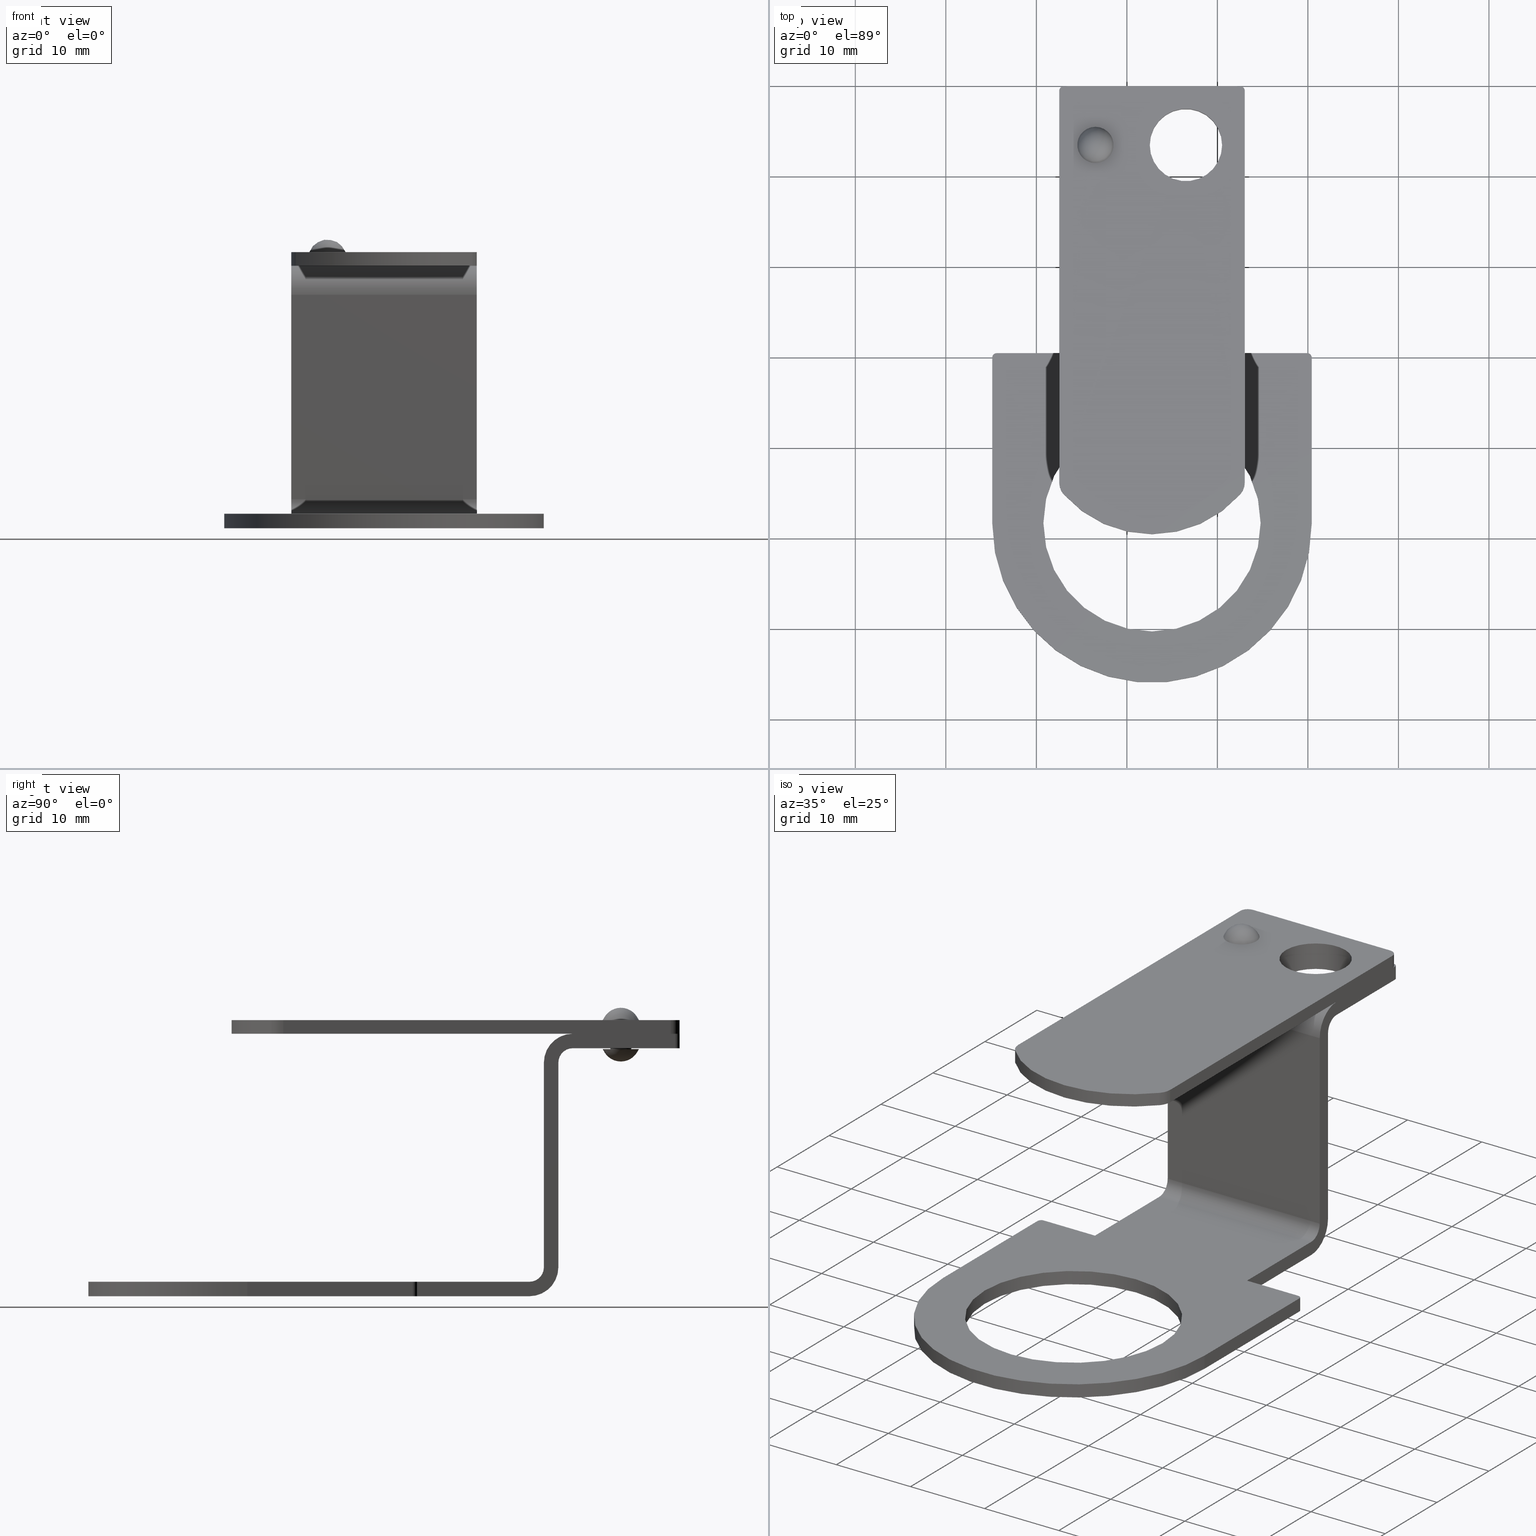
[diagram: canonical four-view strip — front | top / right | iso, engineering-drawing reading convention]
A machine part, canonical four-view strip (front | top / right | iso — engineering-drawing reading convention). The complete STEP part file that produces these views, byte-faithful:
ISO-10303-21;
HEADER;
/****************************************************************
 * Generated by software with PDE/Lib inside                    *
 * PDElib Version v51a, created Thu 12/14/2006                  *
 * International Technegroup Inc. (www.iti-oh.com)              *
 ****************************************************************/
FILE_DESCRIPTION((''),'2;1');
FILE_NAME('M:\\cad\\1PB\\2PAM\\2PAM.stp','2007-11-15T15:30:34',('Philipp'),(''),'Autodesk Inventor 2008','Autodesk Inventor 2008','');
FILE_SCHEMA(('AUTOMOTIVE_DESIGN { 1 0 10303 214 1 1 1 1 }'));
ENDSEC;
DATA;
#5=APPLICATION_CONTEXT('automotive design');
#6=APPLICATION_PROTOCOL_DEFINITION('International Standard','automotive_design',2001,#5);
#7=PRODUCT_CONTEXT('',#5,'mechanical');
#8=PRODUCT('2PAM','2PAM',$,(#7));
#9=PRODUCT_RELATED_PRODUCT_CATEGORY('part',$,(#8));
#10=PRODUCT_DEFINITION_FORMATION('',$,#8);
#11=PRODUCT_DEFINITION_CONTEXT('part definition',#5,'design');
#12=PRODUCT_DEFINITION('',$,#10,#11);
#18=(NAMED_UNIT(*)PLANE_ANGLE_UNIT()SI_UNIT($,.RADIAN.));
#19=DIMENSIONAL_EXPONENTS(0.0,0.0,0.0,0.0,0.0,0.0,0.0);
#20=PLANE_ANGLE_MEASURE_WITH_UNIT(PLANE_ANGLE_MEASURE(0.017453292500000),#18);
#24=(CONVERSION_BASED_UNIT('DEGREE',#20)NAMED_UNIT(#19)PLANE_ANGLE_UNIT());
#28=(NAMED_UNIT(*)SI_UNIT($,.STERADIAN.)SOLID_ANGLE_UNIT());
#32=(LENGTH_UNIT()NAMED_UNIT(*)SI_UNIT(.MILLI.,.METRE.));
#34=UNCERTAINTY_MEASURE_WITH_UNIT(LENGTH_MEASURE(0.010000000000000),#32,'DISTANCE_ACCURACY_VALUE','');
#36=(GEOMETRIC_REPRESENTATION_CONTEXT(3)GLOBAL_UNCERTAINTY_ASSIGNED_CONTEXT((#34))GLOBAL_UNIT_ASSIGNED_CONTEXT((#24,#28,#32))REPRESENTATION_CONTEXT('None','None'));
#37=AXIS2_PLACEMENT_3D('',#38,#39,#40);
#38=CARTESIAN_POINT('',(0.0,0.0,0.0));
#39=DIRECTION('',(0.0,0.0,1.0));
#40=DIRECTION('',(1.0,0.0,0.0));
#41=SHAPE_REPRESENTATION('',(#37,#916,#1354,#1527),#36);
#42=PRODUCT_DEFINITION_SHAPE('','',#12);
#43=SHAPE_DEFINITION_REPRESENTATION(#42,#41);
#44=APPLICATION_CONTEXT('automotive design');
#45=APPLICATION_PROTOCOL_DEFINITION('International Standard','automotive_design',2001,#44);
#46=PRODUCT_CONTEXT('',#44,'mechanical');
#47=PRODUCT('standoff','standoff',$,(#46));
#48=PRODUCT_RELATED_PRODUCT_CATEGORY('part',$,(#47));
#49=PRODUCT_DEFINITION_FORMATION('',$,#47);
#50=PRODUCT_DEFINITION_CONTEXT('part definition',#44,'design');
#51=PRODUCT_DEFINITION('',$,#49,#50);
#57=(NAMED_UNIT(*)PLANE_ANGLE_UNIT()SI_UNIT($,.RADIAN.));
#58=DIMENSIONAL_EXPONENTS(0.0,0.0,0.0,0.0,0.0,0.0,0.0);
#59=PLANE_ANGLE_MEASURE_WITH_UNIT(PLANE_ANGLE_MEASURE(0.017453292500000),#57);
#63=(CONVERSION_BASED_UNIT('DEGREE',#59)NAMED_UNIT(#58)PLANE_ANGLE_UNIT());
#67=(NAMED_UNIT(*)SI_UNIT($,.STERADIAN.)SOLID_ANGLE_UNIT());
#71=(LENGTH_UNIT()NAMED_UNIT(*)SI_UNIT(.MILLI.,.METRE.));
#73=UNCERTAINTY_MEASURE_WITH_UNIT(LENGTH_MEASURE(0.010000000000000),#71,'DISTANCE_ACCURACY_VALUE','');
#75=(GEOMETRIC_REPRESENTATION_CONTEXT(3)GLOBAL_UNCERTAINTY_ASSIGNED_CONTEXT((#73))GLOBAL_UNIT_ASSIGNED_CONTEXT((#63,#67,#71))REPRESENTATION_CONTEXT('None','None'));
#76=AXIS2_PLACEMENT_3D('',#77,#78,#79);
#77=CARTESIAN_POINT('',(0.0,0.0,0.0));
#78=DIRECTION('',(0.0,0.0,1.0));
#79=DIRECTION('',(1.0,0.0,0.0));
#80=SHAPE_REPRESENTATION('',(#76),#75);
#81=PRODUCT_DEFINITION_SHAPE('','',#51);
#82=SHAPE_DEFINITION_REPRESENTATION(#81,#80);
#88=(NAMED_UNIT(*)PLANE_ANGLE_UNIT()SI_UNIT($,.RADIAN.));
#89=DIMENSIONAL_EXPONENTS(0.0,0.0,0.0,0.0,0.0,0.0,0.0);
#90=PLANE_ANGLE_MEASURE_WITH_UNIT(PLANE_ANGLE_MEASURE(0.017453292500000),#88);
#94=(CONVERSION_BASED_UNIT('DEGREE',#90)NAMED_UNIT(#89)PLANE_ANGLE_UNIT());
#98=(NAMED_UNIT(*)SI_UNIT($,.STERADIAN.)SOLID_ANGLE_UNIT());
#102=(LENGTH_UNIT()NAMED_UNIT(*)SI_UNIT(.MILLI.,.METRE.));
#104=UNCERTAINTY_MEASURE_WITH_UNIT(LENGTH_MEASURE(0.000001000000000),#102,'DISTANCE_ACCURACY_VALUE','');
#106=(GEOMETRIC_REPRESENTATION_CONTEXT(3)GLOBAL_UNCERTAINTY_ASSIGNED_CONTEXT((#104))GLOBAL_UNIT_ASSIGNED_CONTEXT((#94,#98,#102))REPRESENTATION_CONTEXT('','3D'));
#107=CARTESIAN_POINT('',(6.526965155120048,22.991234150720000,29.000000000000004));
#108=DIRECTION('',(0.0,0.0,-1.0));
#109=DIRECTION('',(-1.0,0.0,0.0));
#110=AXIS2_PLACEMENT_3D('',#107,#108,#109);
#111=CYLINDRICAL_SURFACE('',#110,4.0);
#112=CARTESIAN_POINT('',(10.526965155120047,22.991234150720000,27.400000000000002));
#113=VERTEX_POINT('',#112);
#114=CARTESIAN_POINT('',(6.526965155120048,22.991234150720000,27.400000000000002));
#115=DIRECTION('',(0.0,0.0,1.0));
#116=DIRECTION('',(-1.0,0.0,0.0));
#117=AXIS2_PLACEMENT_3D('',#114,#115,#116);
#118=CIRCLE('',#117,4.0);
#119=EDGE_CURVE('',#113,#113,#118,.T.);
#120=ORIENTED_EDGE('',*,*,#119,.F.);
#121=EDGE_LOOP('',(#120));
#122=FACE_OUTER_BOUND('',#121,.T.);
#123=CARTESIAN_POINT('',(10.526965155120047,22.991234150720000,29.000000000000004));
#124=VERTEX_POINT('',#123);
#125=CARTESIAN_POINT('',(6.526965155120048,22.991234150720000,29.000000000000004));
#126=DIRECTION('',(0.0,0.0,-1.0));
#127=DIRECTION('',(-1.0,0.0,0.0));
#128=AXIS2_PLACEMENT_3D('',#125,#126,#127);
#129=CIRCLE('',#128,4.0);
#130=EDGE_CURVE('',#124,#124,#129,.T.);
#131=ORIENTED_EDGE('',*,*,#130,.F.);
#132=EDGE_LOOP('',(#131));
#133=FACE_BOUND('',#132,.T.);
#134=ADVANCED_FACE('',(#122,#133),#111,.F.);
#135=CARTESIAN_POINT('',(-3.473034844879960,22.991234150720004,29.000000000000004));
#136=DIRECTION('',(0.0,0.0,-1.0));
#137=DIRECTION('',(-1.0,0.0,0.0));
#138=AXIS2_PLACEMENT_3D('',#135,#136,#137);
#139=CYLINDRICAL_SURFACE('',#138,1.250000000000000);
#140=CARTESIAN_POINT('',(-2.223034844879960,22.991234150720004,27.400000000000002));
#141=VERTEX_POINT('',#140);
#142=CARTESIAN_POINT('',(-3.473034844879960,22.991234150720004,27.400000000000002));
#143=DIRECTION('',(0.0,0.0,1.0));
#144=DIRECTION('',(-1.0,0.0,0.0));
#145=AXIS2_PLACEMENT_3D('',#142,#143,#144);
#146=CIRCLE('',#145,1.250000000000000);
#147=EDGE_CURVE('',#141,#141,#146,.T.);
#148=ORIENTED_EDGE('',*,*,#147,.F.);
#149=EDGE_LOOP('',(#148));
#150=FACE_OUTER_BOUND('',#149,.T.);
#151=CARTESIAN_POINT('',(-2.223034844879960,22.991234150720004,29.000000000000004));
#152=VERTEX_POINT('',#151);
#153=CARTESIAN_POINT('',(-3.473034844879960,22.991234150720004,29.000000000000004));
#154=DIRECTION('',(0.0,0.0,-1.0));
#155=DIRECTION('',(-1.0,0.0,0.0));
#156=AXIS2_PLACEMENT_3D('',#153,#154,#155);
#157=CIRCLE('',#156,1.250000000000000);
#158=EDGE_CURVE('',#152,#152,#157,.T.);
#159=ORIENTED_EDGE('',*,*,#158,.F.);
#160=EDGE_LOOP('',(#159));
#161=FACE_BOUND('',#160,.T.);
#162=ADVANCED_FACE('',(#150,#161),#139,.F.);
#163=CARTESIAN_POINT('',(19.926965155120048,-0.008765849279999,0.0));
#164=DIRECTION('',(0.0,0.0,1.0));
#165=DIRECTION('',(0.707106781186549,0.707106781186546,0.0));
#166=AXIS2_PLACEMENT_3D('',#163,#164,#165);
#167=CYLINDRICAL_SURFACE('',#166,0.500000000000000);
#168=CARTESIAN_POINT('',(19.926965155120048,0.491234150720001,1.600000000000000));
#169=VERTEX_POINT('',#168);
#170=CARTESIAN_POINT('',(20.426965155120051,-0.008765849279999,1.600000000000000));
#171=VERTEX_POINT('',#170);
#172=CARTESIAN_POINT('',(19.926965155120048,-0.008765849279999,1.600000000000000));
#173=DIRECTION('',(0.0,0.0,-1.000000000000000));
#174=DIRECTION('',(0.707106781186549,0.707106781186546,0.0));
#175=AXIS2_PLACEMENT_3D('',#172,#173,#174);
#176=CIRCLE('',#175,0.500000000000000);
#177=EDGE_CURVE('',#169,#171,#176,.T.);
#178=ORIENTED_EDGE('',*,*,#177,.T.);
#179=CARTESIAN_POINT('',(20.426965155120051,-0.008765849279999,0.0));
#180=VERTEX_POINT('',#179);
#181=CARTESIAN_POINT('',(20.426965155120051,-0.008765849279999,1.600000000000000));
#182=DIRECTION('',(0.0,0.0,-1.0));
#183=VECTOR('',#182,1.600000000000000);
#184=LINE('',#181,#183);
#185=EDGE_CURVE('',#171,#180,#184,.T.);
#186=ORIENTED_EDGE('',*,*,#185,.T.);
#187=CARTESIAN_POINT('',(19.926965155120048,0.491234150720001,0.0));
#188=VERTEX_POINT('',#187);
#189=CARTESIAN_POINT('',(19.926965155120048,-0.008765849279999,0.0));
#190=DIRECTION('',(0.0,0.0,1.000000000000000));
#191=DIRECTION('',(0.707106781186549,0.707106781186546,0.0));
#192=AXIS2_PLACEMENT_3D('',#189,#190,#191);
#193=CIRCLE('',#192,0.500000000000000);
#194=EDGE_CURVE('',#180,#188,#193,.T.);
#195=ORIENTED_EDGE('',*,*,#194,.T.);
#196=CARTESIAN_POINT('',(19.926965155120048,0.491234150720001,0.0));
#197=DIRECTION('',(0.0,0.0,1.0));
#198=VECTOR('',#197,1.600000000000000);
#199=LINE('',#196,#198);
#200=EDGE_CURVE('',#188,#169,#199,.T.);
#201=ORIENTED_EDGE('',*,*,#200,.T.);
#202=EDGE_LOOP('',(#178,#186,#195,#201));
#203=FACE_OUTER_BOUND('',#202,.T.);
#204=ADVANCED_FACE('',(#203),#167,.T.);
#205=CARTESIAN_POINT('',(20.426965155120051,0.491234150720001,0.0));
#206=DIRECTION('',(1.0,0.0,0.0));
#207=DIRECTION('',(0.0,0.0,-1.0));
#208=AXIS2_PLACEMENT_3D('',#205,#206,#207);
#209=PLANE('',#208);
#210=ORIENTED_EDGE('',*,*,#185,.F.);
#211=CARTESIAN_POINT('',(20.426965155120044,-18.258765849280003,1.600000000000000));
#212=VERTEX_POINT('',#211);
#213=CARTESIAN_POINT('',(20.426965155120051,-0.008765849279999,1.600000000000000));
#214=DIRECTION('',(0.0,-1.0,0.0));
#215=VECTOR('',#214,18.250000000000004);
#216=LINE('',#213,#215);
#217=EDGE_CURVE('',#171,#212,#216,.T.);
#218=ORIENTED_EDGE('',*,*,#217,.T.);
#219=CARTESIAN_POINT('',(20.426965155120044,-18.258765849280003,0.0));
#220=VERTEX_POINT('',#219);
#221=CARTESIAN_POINT('',(20.426965155120044,-18.258765849280003,0.0));
#222=DIRECTION('',(0.0,0.0,1.0));
#223=VECTOR('',#222,1.600000000000000);
#224=LINE('',#221,#223);
#225=EDGE_CURVE('',#220,#212,#224,.T.);
#226=ORIENTED_EDGE('',*,*,#225,.F.);
#227=CARTESIAN_POINT('',(20.426965155120044,-18.258765849280003,0.0));
#228=DIRECTION('',(0.0,1.0,0.0));
#229=VECTOR('',#228,18.250000000000004);
#230=LINE('',#227,#229);
#231=EDGE_CURVE('',#220,#180,#230,.T.);
#232=ORIENTED_EDGE('',*,*,#231,.T.);
#233=EDGE_LOOP('',(#210,#218,#226,#232));
#234=FACE_OUTER_BOUND('',#233,.T.);
#235=ADVANCED_FACE('',(#234),#209,.T.);
#236=CARTESIAN_POINT('',(2.776965155120047,-8.225099792446088,1.600000000000000));
#237=DIRECTION('',(0.0,0.0,1.0));
#238=DIRECTION('',(1.0,0.0,0.0));
#239=AXIS2_PLACEMENT_3D('',#236,#237,#238);
#240=PLANE('',#239);
#241=ORIENTED_EDGE('',*,*,#177,.F.);
#242=CARTESIAN_POINT('',(13.026965155120049,0.491234150719997,1.600000000000000));
#243=VERTEX_POINT('',#242);
#244=CARTESIAN_POINT('',(13.026965155120049,0.491234150719997,1.600000000000000));
#245=DIRECTION('',(1.0,0.0,0.0));
#246=VECTOR('',#245,6.899999999999999);
#247=LINE('',#244,#246);
#248=EDGE_CURVE('',#243,#169,#247,.T.);
#249=ORIENTED_EDGE('',*,*,#248,.F.);
#250=CARTESIAN_POINT('',(13.026965155120047,12.891234150719997,1.600000000000000));
#251=VERTEX_POINT('',#250);
#252=CARTESIAN_POINT('',(13.026965155120047,12.891234150719997,1.600000000000000));
#253=DIRECTION('',(0.0,-1.0,0.0));
#254=VECTOR('',#253,12.400000000000000);
#255=LINE('',#252,#254);
#256=EDGE_CURVE('',#251,#243,#255,.T.);
#257=ORIENTED_EDGE('',*,*,#256,.F.);
#258=CARTESIAN_POINT('',(-7.473034844879956,12.891234150719997,1.600000000000000));
#259=VERTEX_POINT('',#258);
#260=CARTESIAN_POINT('',(13.026965155120047,12.891234150719997,1.600000000000000));
#261=DIRECTION('',(-1.0,0.0,0.0));
#262=VECTOR('',#261,20.500000000000004);
#263=LINE('',#260,#262);
#264=EDGE_CURVE('',#251,#259,#263,.T.);
#265=ORIENTED_EDGE('',*,*,#264,.T.);
#266=CARTESIAN_POINT('',(-7.473034844879951,0.491234150719997,1.600000000000000));
#267=VERTEX_POINT('',#266);
#268=CARTESIAN_POINT('',(-7.473034844879951,0.491234150719997,1.600000000000000));
#269=DIRECTION('',(0.0,1.0,0.0));
#270=VECTOR('',#269,12.400000000000000);
#271=LINE('',#268,#270);
#272=EDGE_CURVE('',#267,#259,#271,.T.);
#273=ORIENTED_EDGE('',*,*,#272,.F.);
#274=CARTESIAN_POINT('',(-14.373034844879953,0.491234150719993,1.600000000000000));
#275=VERTEX_POINT('',#274);
#276=CARTESIAN_POINT('',(-14.373034844879953,0.491234150719993,1.600000000000000));
#277=DIRECTION('',(1.0,0.0,0.0));
#278=VECTOR('',#277,6.900000000000002);
#279=LINE('',#276,#278);
#280=EDGE_CURVE('',#275,#267,#279,.T.);
#281=ORIENTED_EDGE('',*,*,#280,.F.);
#282=CARTESIAN_POINT('',(-14.873034844879953,-0.008765849280008,1.600000000000000));
#283=VERTEX_POINT('',#282);
#284=CARTESIAN_POINT('',(-14.373034844879953,-0.008765849280008,1.600000000000000));
#285=DIRECTION('',(0.0,0.0,-1.0));
#286=DIRECTION('',(-0.707106781186549,0.707106781186546,0.0));
#287=AXIS2_PLACEMENT_3D('',#284,#285,#286);
#288=CIRCLE('',#287,0.500000000000000);
#289=EDGE_CURVE('',#283,#275,#288,.T.);
#290=ORIENTED_EDGE('',*,*,#289,.F.);
#291=CARTESIAN_POINT('',(-14.873034844879951,-18.258765849280007,1.600000000000000));
#292=VERTEX_POINT('',#291);
#293=CARTESIAN_POINT('',(-14.873034844879951,-18.258765849280007,1.600000000000000));
#294=DIRECTION('',(0.0,1.0,0.0));
#295=VECTOR('',#294,18.250000000000000);
#296=LINE('',#293,#295);
#297=EDGE_CURVE('',#292,#283,#296,.T.);
#298=ORIENTED_EDGE('',*,*,#297,.F.);
#299=CARTESIAN_POINT('',(2.776965155120046,-18.258765849280007,1.600000000000000));
#300=DIRECTION('',(0.0,0.0,-1.0));
#301=DIRECTION('',(-1.0,0.0,0.0));
#302=AXIS2_PLACEMENT_3D('',#299,#300,#301);
#303=CIRCLE('',#302,17.649999999999999);
#304=EDGE_CURVE('',#212,#292,#303,.T.);
#305=ORIENTED_EDGE('',*,*,#304,.F.);
#306=ORIENTED_EDGE('',*,*,#217,.F.);
#307=EDGE_LOOP('',(#241,#249,#257,#265,#273,#281,#290,#298,#305,#306));
#308=FACE_OUTER_BOUND('',#307,.T.);
#309=CARTESIAN_POINT('',(14.776965155120047,-18.258765849280007,1.600000000000000));
#310=VERTEX_POINT('',#309);
#311=CARTESIAN_POINT('',(2.776965155120046,-18.258765849280007,1.600000000000000));
#312=DIRECTION('',(0.0,0.0,-1.0));
#313=DIRECTION('',(-1.0,0.0,0.0));
#314=AXIS2_PLACEMENT_3D('',#311,#312,#313);
#315=CIRCLE('',#314,12.000000000000002);
#316=EDGE_CURVE('',#310,#310,#315,.T.);
#317=ORIENTED_EDGE('',*,*,#316,.T.);
#318=EDGE_LOOP('',(#317));
#319=FACE_BOUND('',#318,.T.);
#320=ADVANCED_FACE('',(#308,#319),#240,.T.);
#321=CARTESIAN_POINT('',(-6.973034844879960,28.991234150720004,28.600000000000001));
#322=DIRECTION('',(-2.069656E-028,0.0,1.0));
#323=DIRECTION('',(-0.707106781186549,0.707106781186546,0.0));
#324=AXIS2_PLACEMENT_3D('',#321,#322,#323);
#325=CYLINDRICAL_SURFACE('',#324,0.500000000000000);
#326=CARTESIAN_POINT('',(-7.473034844879960,28.991234150720004,29.000000000000004));
#327=VERTEX_POINT('',#326);
#328=CARTESIAN_POINT('',(-6.973034844879960,29.491234150720000,29.000000000000004));
#329=VERTEX_POINT('',#328);
#330=CARTESIAN_POINT('',(-6.973034844879960,28.991234150720004,29.000000000000004));
#331=DIRECTION('',(0.0,0.0,-1.0));
#332=DIRECTION('',(-0.707106781186549,0.707106781186546,0.0));
#333=AXIS2_PLACEMENT_3D('',#330,#331,#332);
#334=CIRCLE('',#333,0.500000000000000);
#335=EDGE_CURVE('',#327,#329,#334,.T.);
#336=ORIENTED_EDGE('',*,*,#335,.T.);
#337=CARTESIAN_POINT('',(-6.973034844879960,29.491234150720000,27.400000000000002));
#338=VERTEX_POINT('',#337);
#339=CARTESIAN_POINT('',(-6.973034844879960,29.491234150720000,29.000000000000004));
#340=DIRECTION('',(0.0,0.0,-1.0));
#341=VECTOR('',#340,1.600000000000001);
#342=LINE('',#339,#341);
#343=EDGE_CURVE('',#329,#338,#342,.T.);
#344=ORIENTED_EDGE('',*,*,#343,.T.);
#345=CARTESIAN_POINT('',(-7.473034844879960,28.991234150720004,27.400000000000002));
#346=VERTEX_POINT('',#345);
#347=CARTESIAN_POINT('',(-6.973034844879960,28.991234150720004,27.400000000000002));
#348=DIRECTION('',(0.0,0.0,1.0));
#349=DIRECTION('',(-0.707106781186549,0.707106781186546,0.0));
#350=AXIS2_PLACEMENT_3D('',#347,#348,#349);
#351=CIRCLE('',#350,0.500000000000000);
#352=EDGE_CURVE('',#338,#346,#351,.T.);
#353=ORIENTED_EDGE('',*,*,#352,.T.);
#354=CARTESIAN_POINT('',(-7.473034844879960,28.991234150720004,27.400000000000002));
#355=DIRECTION('',(0.0,0.0,1.0));
#356=VECTOR('',#355,1.600000000000001);
#357=LINE('',#354,#356);
#358=EDGE_CURVE('',#346,#327,#357,.T.);
#359=ORIENTED_EDGE('',*,*,#358,.T.);
#360=EDGE_LOOP('',(#336,#344,#353,#359));
#361=FACE_OUTER_BOUND('',#360,.T.);
#362=ADVANCED_FACE('',(#361),#325,.T.);
#363=CARTESIAN_POINT('',(-7.473034844879960,29.491234150720000,29.000000000000004));
#364=DIRECTION('',(0.0,1.0,0.0));
#365=DIRECTION('',(0.0,0.0,1.0));
#366=AXIS2_PLACEMENT_3D('',#363,#364,#365);
#367=PLANE('',#366);
#368=ORIENTED_EDGE('',*,*,#343,.F.);
#369=CARTESIAN_POINT('',(12.526965155120049,29.491234150720000,29.000000000000004));
#370=VERTEX_POINT('',#369);
#371=CARTESIAN_POINT('',(-6.973034844879960,29.491234150720000,29.000000000000004));
#372=DIRECTION('',(1.0,0.0,0.0));
#373=VECTOR('',#372,19.500000000000007);
#374=LINE('',#371,#373);
#375=EDGE_CURVE('',#329,#370,#374,.T.);
#376=ORIENTED_EDGE('',*,*,#375,.T.);
#377=CARTESIAN_POINT('',(12.526965155120049,29.491234150720000,27.400000000000002));
#378=VERTEX_POINT('',#377);
#379=CARTESIAN_POINT('',(12.526965155120049,29.491234150720000,27.400000000000002));
#380=DIRECTION('',(0.0,0.0,1.0));
#381=VECTOR('',#380,1.600000000000001);
#382=LINE('',#379,#381);
#383=EDGE_CURVE('',#378,#370,#382,.T.);
#384=ORIENTED_EDGE('',*,*,#383,.F.);
#385=CARTESIAN_POINT('',(-6.973034844879960,29.491234150720000,27.400000000000002));
#386=DIRECTION('',(1.0,0.0,0.0));
#387=VECTOR('',#386,19.500000000000007);
#388=LINE('',#385,#387);
#389=EDGE_CURVE('',#338,#378,#388,.T.);
#390=ORIENTED_EDGE('',*,*,#389,.F.);
#391=EDGE_LOOP('',(#368,#376,#384,#390));
#392=FACE_OUTER_BOUND('',#391,.T.);
#393=ADVANCED_FACE('',(#392),#367,.T.);
#394=CARTESIAN_POINT('',(-7.473034844879960,14.491234150720000,29.000000000000004));
#395=DIRECTION('',(0.0,0.0,1.0));
#396=DIRECTION('',(1.0,0.0,0.0));
#397=AXIS2_PLACEMENT_3D('',#394,#395,#396);
#398=PLANE('',#397);
#399=ORIENTED_EDGE('',*,*,#335,.F.);
#400=CARTESIAN_POINT('',(-7.473034844879960,17.691234150719989,29.000000000000004));
#401=VERTEX_POINT('',#400);
#402=CARTESIAN_POINT('',(-7.473034844879960,28.991234150720004,29.000000000000004));
#403=DIRECTION('',(0.0,-1.0,0.0));
#404=VECTOR('',#403,11.300000000000015);
#405=LINE('',#402,#404);
#406=EDGE_CURVE('',#327,#401,#405,.T.);
#407=ORIENTED_EDGE('',*,*,#406,.T.);
#408=CARTESIAN_POINT('',(13.026965155120047,17.691234150720000,29.000000000000004));
#409=VERTEX_POINT('',#408);
#410=CARTESIAN_POINT('',(13.026965155120047,17.691234150720000,29.000000000000004));
#411=DIRECTION('',(-1.0,0.0,0.0));
#412=VECTOR('',#411,20.500000000000007);
#413=LINE('',#410,#412);
#414=EDGE_CURVE('',#409,#401,#413,.T.);
#415=ORIENTED_EDGE('',*,*,#414,.F.);
#416=CARTESIAN_POINT('',(13.026965155120047,28.991234150720004,29.000000000000004));
#417=VERTEX_POINT('',#416);
#418=CARTESIAN_POINT('',(13.026965155120047,17.691234150720000,29.000000000000004));
#419=DIRECTION('',(0.0,1.0,0.0));
#420=VECTOR('',#419,11.300000000000004);
#421=LINE('',#418,#420);
#422=EDGE_CURVE('',#409,#417,#421,.T.);
#423=ORIENTED_EDGE('',*,*,#422,.T.);
#424=CARTESIAN_POINT('',(12.526965155120049,28.991234150720004,29.000000000000004));
#425=DIRECTION('',(0.0,0.0,-1.000000000000000));
#426=DIRECTION('',(0.707106781186548,0.707106781186548,0.0));
#427=AXIS2_PLACEMENT_3D('',#424,#425,#426);
#428=CIRCLE('',#427,0.500000000000000);
#429=EDGE_CURVE('',#370,#417,#428,.T.);
#430=ORIENTED_EDGE('',*,*,#429,.F.);
#431=ORIENTED_EDGE('',*,*,#375,.F.);
#432=EDGE_LOOP('',(#399,#407,#415,#423,#430,#431));
#433=FACE_OUTER_BOUND('',#432,.T.);
#434=ORIENTED_EDGE('',*,*,#130,.T.);
#435=EDGE_LOOP('',(#434));
#436=FACE_BOUND('',#435,.T.);
#437=ORIENTED_EDGE('',*,*,#158,.T.);
#438=EDGE_LOOP('',(#437));
#439=FACE_BOUND('',#438,.T.);
#440=ADVANCED_FACE('',(#433,#436,#439),#398,.T.);
#441=CARTESIAN_POINT('',(12.526965155120049,28.991234150720004,28.600000000000001));
#442=DIRECTION('',(1.379771E-028,0.0,-1.0));
#443=DIRECTION('',(0.707106781186548,0.707106781186548,0.0));
#444=AXIS2_PLACEMENT_3D('',#441,#442,#443);
#445=CYLINDRICAL_SURFACE('',#444,0.500000000000000);
#446=CARTESIAN_POINT('',(13.026965155120047,28.991234150720004,27.400000000000002));
#447=VERTEX_POINT('',#446);
#448=CARTESIAN_POINT('',(12.526965155120049,28.991234150720004,27.400000000000002));
#449=DIRECTION('',(0.0,0.0,1.000000000000000));
#450=DIRECTION('',(0.707106781186548,0.707106781186548,0.0));
#451=AXIS2_PLACEMENT_3D('',#448,#449,#450);
#452=CIRCLE('',#451,0.500000000000000);
#453=EDGE_CURVE('',#447,#378,#452,.T.);
#454=ORIENTED_EDGE('',*,*,#453,.T.);
#455=ORIENTED_EDGE('',*,*,#383,.T.);
#456=ORIENTED_EDGE('',*,*,#429,.T.);
#457=CARTESIAN_POINT('',(13.026965155120047,28.991234150720004,29.000000000000004));
#458=DIRECTION('',(0.0,0.0,-1.0));
#459=VECTOR('',#458,1.600000000000001);
#460=LINE('',#457,#459);
#461=EDGE_CURVE('',#417,#447,#460,.T.);
#462=ORIENTED_EDGE('',*,*,#461,.T.);
#463=EDGE_LOOP('',(#454,#455,#456,#462));
#464=FACE_OUTER_BOUND('',#463,.T.);
#465=ADVANCED_FACE('',(#464),#445,.T.);
#466=CARTESIAN_POINT('',(13.026965155120047,21.991234150720000,28.200000000000003));
#467=DIRECTION('',(1.0,0.0,0.0));
#468=DIRECTION('',(0.0,0.0,-1.0));
#469=AXIS2_PLACEMENT_3D('',#466,#467,#468);
#470=PLANE('',#469);
#471=ORIENTED_EDGE('',*,*,#461,.F.);
#472=ORIENTED_EDGE('',*,*,#422,.F.);
#473=CARTESIAN_POINT('',(13.026965155120047,14.491234150719999,25.800000000000001));
#474=VERTEX_POINT('',#473);
#475=CARTESIAN_POINT('',(13.026965155120047,17.691234150720000,25.800000000000001));
#476=DIRECTION('',(-1.0,0.0,0.0));
#477=DIRECTION('',(0.0,-1.0,0.0));
#478=AXIS2_PLACEMENT_3D('',#475,#476,#477);
#479=CIRCLE('',#478,3.200000000000001);
#480=EDGE_CURVE('',#474,#409,#479,.T.);
#481=ORIENTED_EDGE('',*,*,#480,.F.);
#482=CARTESIAN_POINT('',(13.026965155120047,14.491234150719997,3.199999999999998));
#483=VERTEX_POINT('',#482);
#484=CARTESIAN_POINT('',(13.026965155120047,14.491234150719997,3.199999999999998));
#485=DIRECTION('',(0.0,0.0,1.0));
#486=VECTOR('',#485,22.600000000000001);
#487=LINE('',#484,#486);
#488=EDGE_CURVE('',#483,#474,#487,.T.);
#489=ORIENTED_EDGE('',*,*,#488,.F.);
#490=CARTESIAN_POINT('',(13.026965155120047,12.891234150719997,3.200000000000001));
#491=DIRECTION('',(1.0,0.0,0.0));
#492=DIRECTION('',(0.0,0.0,-1.0));
#493=AXIS2_PLACEMENT_3D('',#490,#491,#492);
#494=CIRCLE('',#493,1.600000000000000);
#495=EDGE_CURVE('',#251,#483,#494,.T.);
#496=ORIENTED_EDGE('',*,*,#495,.F.);
#497=ORIENTED_EDGE('',*,*,#256,.T.);
#498=CARTESIAN_POINT('',(13.026965155120049,0.491234150719997,0.0));
#499=VERTEX_POINT('',#498);
#500=CARTESIAN_POINT('',(13.026965155120049,0.491234150719997,0.0));
#501=DIRECTION('',(0.0,0.0,1.0));
#502=VECTOR('',#501,1.600000000000000);
#503=LINE('',#500,#502);
#504=EDGE_CURVE('',#499,#243,#503,.T.);
#505=ORIENTED_EDGE('',*,*,#504,.F.);
#506=CARTESIAN_POINT('',(13.026965155120047,12.891234150719997,5.551115E-016));
#507=VERTEX_POINT('',#506);
#508=CARTESIAN_POINT('',(13.026965155120049,0.491234150719997,0.0));
#509=DIRECTION('',(0.0,1.0,0.0));
#510=VECTOR('',#509,12.400000000000000);
#511=LINE('',#508,#510);
#512=EDGE_CURVE('',#499,#507,#511,.T.);
#513=ORIENTED_EDGE('',*,*,#512,.T.);
#514=CARTESIAN_POINT('',(13.026965155120047,16.091234150719998,3.199999999999998));
#515=VERTEX_POINT('',#514);
#516=CARTESIAN_POINT('',(13.026965155120047,12.891234150719997,3.200000000000001));
#517=DIRECTION('',(1.0,0.0,0.0));
#518=DIRECTION('',(0.0,0.0,-1.0));
#519=AXIS2_PLACEMENT_3D('',#516,#517,#518);
#520=CIRCLE('',#519,3.200000000000000);
#521=EDGE_CURVE('',#507,#515,#520,.T.);
#522=ORIENTED_EDGE('',*,*,#521,.T.);
#523=CARTESIAN_POINT('',(13.026965155120047,16.091234150719998,25.800000000000001));
#524=VERTEX_POINT('',#523);
#525=CARTESIAN_POINT('',(13.026965155120047,16.091234150719998,25.800000000000001));
#526=DIRECTION('',(0.0,0.0,-1.0));
#527=VECTOR('',#526,22.600000000000001);
#528=LINE('',#525,#527);
#529=EDGE_CURVE('',#524,#515,#528,.T.);
#530=ORIENTED_EDGE('',*,*,#529,.F.);
#531=CARTESIAN_POINT('',(13.026965155120047,17.691234150720000,27.400000000000002));
#532=VERTEX_POINT('',#531);
#533=CARTESIAN_POINT('',(13.026965155120047,17.691234150720000,25.800000000000001));
#534=DIRECTION('',(-1.0,0.0,0.0));
#535=DIRECTION('',(0.0,-1.0,0.0));
#536=AXIS2_PLACEMENT_3D('',#533,#534,#535);
#537=CIRCLE('',#536,1.600000000000001);
#538=EDGE_CURVE('',#524,#532,#537,.T.);
#539=ORIENTED_EDGE('',*,*,#538,.T.);
#540=CARTESIAN_POINT('',(13.026965155120047,28.991234150720004,27.400000000000002));
#541=DIRECTION('',(0.0,-1.0,0.0));
#542=VECTOR('',#541,11.300000000000004);
#543=LINE('',#540,#542);
#544=EDGE_CURVE('',#447,#532,#543,.T.);
#545=ORIENTED_EDGE('',*,*,#544,.F.);
#546=EDGE_LOOP('',(#471,#472,#481,#489,#496,#497,#505,#513,#522,#530,#539,#545));
#547=FACE_OUTER_BOUND('',#546,.T.);
#548=ADVANCED_FACE('',(#547),#470,.T.);
#549=CARTESIAN_POINT('',(-14.373034844879953,-0.008765849280008,0.0));
#550=DIRECTION('',(0.0,0.0,1.0));
#551=DIRECTION('',(-0.707106781186549,0.707106781186546,0.0));
#552=AXIS2_PLACEMENT_3D('',#549,#550,#551);
#553=CYLINDRICAL_SURFACE('',#552,0.500000000000000);
#554=ORIENTED_EDGE('',*,*,#289,.T.);
#555=CARTESIAN_POINT('',(-14.373034844879953,0.491234150719993,0.0));
#556=VERTEX_POINT('',#555);
#557=CARTESIAN_POINT('',(-14.373034844879953,0.491234150719993,1.600000000000000));
#558=DIRECTION('',(0.0,0.0,-1.0));
#559=VECTOR('',#558,1.600000000000000);
#560=LINE('',#557,#559);
#561=EDGE_CURVE('',#275,#556,#560,.T.);
#562=ORIENTED_EDGE('',*,*,#561,.T.);
#563=CARTESIAN_POINT('',(-14.873034844879953,-0.008765849280008,0.0));
#564=VERTEX_POINT('',#563);
#565=CARTESIAN_POINT('',(-14.373034844879953,-0.008765849280008,0.0));
#566=DIRECTION('',(0.0,0.0,1.0));
#567=DIRECTION('',(-0.707106781186549,0.707106781186546,0.0));
#568=AXIS2_PLACEMENT_3D('',#565,#566,#567);
#569=CIRCLE('',#568,0.500000000000000);
#570=EDGE_CURVE('',#556,#564,#569,.T.);
#571=ORIENTED_EDGE('',*,*,#570,.T.);
#572=CARTESIAN_POINT('',(-14.873034844879953,-0.008765849280008,0.0));
#573=DIRECTION('',(0.0,0.0,1.0));
#574=VECTOR('',#573,1.600000000000000);
#575=LINE('',#572,#574);
#576=EDGE_CURVE('',#564,#283,#575,.T.);
#577=ORIENTED_EDGE('',*,*,#576,.T.);
#578=EDGE_LOOP('',(#554,#562,#571,#577));
#579=FACE_OUTER_BOUND('',#578,.T.);
#580=ADVANCED_FACE('',(#579),#553,.T.);
#581=CARTESIAN_POINT('',(-14.873034844879953,0.491234150719992,0.0));
#582=DIRECTION('',(0.0,1.0,0.0));
#583=DIRECTION('',(0.0,0.0,1.0));
#584=AXIS2_PLACEMENT_3D('',#581,#582,#583);
#585=PLANE('',#584);
#586=ORIENTED_EDGE('',*,*,#561,.F.);
#587=ORIENTED_EDGE('',*,*,#280,.T.);
#588=CARTESIAN_POINT('',(-7.473034844879951,0.491234150719997,0.0));
#589=VERTEX_POINT('',#588);
#590=CARTESIAN_POINT('',(-7.473034844879951,0.491234150719997,0.0));
#591=DIRECTION('',(0.0,0.0,1.0));
#592=VECTOR('',#591,1.600000000000000);
#593=LINE('',#590,#592);
#594=EDGE_CURVE('',#589,#267,#593,.T.);
#595=ORIENTED_EDGE('',*,*,#594,.F.);
#596=CARTESIAN_POINT('',(-7.473034844879951,0.491234150719997,0.0));
#597=DIRECTION('',(-1.0,0.0,0.0));
#598=VECTOR('',#597,6.900000000000002);
#599=LINE('',#596,#598);
#600=EDGE_CURVE('',#589,#556,#599,.T.);
#601=ORIENTED_EDGE('',*,*,#600,.T.);
#602=EDGE_LOOP('',(#586,#587,#595,#601));
#603=FACE_OUTER_BOUND('',#602,.T.);
#604=ADVANCED_FACE('',(#603),#585,.T.);
#605=CARTESIAN_POINT('',(-7.473034844879960,29.491234150720000,27.400000000000002));
#606=DIRECTION('',(0.0,0.0,-1.0));
#607=DIRECTION('',(-1.0,0.0,0.0));
#608=AXIS2_PLACEMENT_3D('',#605,#606,#607);
#609=PLANE('',#608);
#610=ORIENTED_EDGE('',*,*,#352,.F.);
#611=ORIENTED_EDGE('',*,*,#389,.T.);
#612=ORIENTED_EDGE('',*,*,#453,.F.);
#613=ORIENTED_EDGE('',*,*,#544,.T.);
#614=CARTESIAN_POINT('',(-7.473034844879960,17.691234150719989,27.400000000000002));
#615=VERTEX_POINT('',#614);
#616=CARTESIAN_POINT('',(-7.473034844879960,17.691234150719989,27.400000000000002));
#617=DIRECTION('',(1.0,0.0,0.0));
#618=VECTOR('',#617,20.500000000000007);
#619=LINE('',#616,#618);
#620=EDGE_CURVE('',#615,#532,#619,.T.);
#621=ORIENTED_EDGE('',*,*,#620,.F.);
#622=CARTESIAN_POINT('',(-7.473034844879960,17.691234150719989,27.400000000000002));
#623=DIRECTION('',(0.0,1.0,0.0));
#624=VECTOR('',#623,11.300000000000015);
#625=LINE('',#622,#624);
#626=EDGE_CURVE('',#615,#346,#625,.T.);
#627=ORIENTED_EDGE('',*,*,#626,.T.);
#628=EDGE_LOOP('',(#610,#611,#612,#613,#621,#627));
#629=FACE_OUTER_BOUND('',#628,.T.);
#630=ORIENTED_EDGE('',*,*,#119,.T.);
#631=EDGE_LOOP('',(#630));
#632=FACE_BOUND('',#631,.T.);
#633=ORIENTED_EDGE('',*,*,#147,.T.);
#634=EDGE_LOOP('',(#633));
#635=FACE_BOUND('',#634,.T.);
#636=ADVANCED_FACE('',(#629,#632,#635),#609,.T.);
#637=CARTESIAN_POINT('',(-7.473034844879960,21.991234150720000,28.200000000000003));
#638=DIRECTION('',(1.0,0.0,0.0));
#639=DIRECTION('',(0.0,0.0,-1.0));
#640=AXIS2_PLACEMENT_3D('',#637,#638,#639);
#641=PLANE('',#640);
#642=ORIENTED_EDGE('',*,*,#358,.F.);
#643=ORIENTED_EDGE('',*,*,#626,.F.);
#644=CARTESIAN_POINT('',(-7.473034844879960,16.091234150719998,25.800000000000001));
#645=VERTEX_POINT('',#644);
#646=CARTESIAN_POINT('',(-7.473034844879960,17.691234150720000,25.800000000000001));
#647=DIRECTION('',(-1.0,0.0,0.0));
#648=DIRECTION('',(0.0,-1.0,0.0));
#649=AXIS2_PLACEMENT_3D('',#646,#647,#648);
#650=CIRCLE('',#649,1.600000000000001);
#651=EDGE_CURVE('',#645,#615,#650,.T.);
#652=ORIENTED_EDGE('',*,*,#651,.F.);
#653=CARTESIAN_POINT('',(-7.473034844879956,16.091234150719998,3.200000000000012));
#654=VERTEX_POINT('',#653);
#655=CARTESIAN_POINT('',(-7.473034844879956,16.091234150719998,3.200000000000012));
#656=DIRECTION('',(0.0,0.0,1.0));
#657=VECTOR('',#656,22.599999999999987);
#658=LINE('',#655,#657);
#659=EDGE_CURVE('',#654,#645,#658,.T.);
#660=ORIENTED_EDGE('',*,*,#659,.F.);
#661=CARTESIAN_POINT('',(-7.473034844879956,12.891234150719997,5.551115E-016));
#662=VERTEX_POINT('',#661);
#663=CARTESIAN_POINT('',(-7.473034844879956,12.891234150719997,3.200000000000001));
#664=DIRECTION('',(1.0,0.0,0.0));
#665=DIRECTION('',(0.0,0.0,-1.0));
#666=AXIS2_PLACEMENT_3D('',#663,#664,#665);
#667=CIRCLE('',#666,3.200000000000000);
#668=EDGE_CURVE('',#662,#654,#667,.T.);
#669=ORIENTED_EDGE('',*,*,#668,.F.);
#670=CARTESIAN_POINT('',(-7.473034844879956,12.891234150719997,5.551115E-016));
#671=DIRECTION('',(0.0,-1.0,0.0));
#672=VECTOR('',#671,12.400000000000000);
#673=LINE('',#670,#672);
#674=EDGE_CURVE('',#662,#589,#673,.T.);
#675=ORIENTED_EDGE('',*,*,#674,.T.);
#676=ORIENTED_EDGE('',*,*,#594,.T.);
#677=ORIENTED_EDGE('',*,*,#272,.T.);
#678=CARTESIAN_POINT('',(-7.473034844879956,14.491234150719997,3.200000000000012));
#679=VERTEX_POINT('',#678);
#680=CARTESIAN_POINT('',(-7.473034844879956,12.891234150719997,3.200000000000001));
#681=DIRECTION('',(1.0,0.0,0.0));
#682=DIRECTION('',(0.0,0.0,-1.0));
#683=AXIS2_PLACEMENT_3D('',#680,#681,#682);
#684=CIRCLE('',#683,1.600000000000000);
#685=EDGE_CURVE('',#259,#679,#684,.T.);
#686=ORIENTED_EDGE('',*,*,#685,.T.);
#687=CARTESIAN_POINT('',(-7.473034844879960,14.491234150719999,25.800000000000001));
#688=VERTEX_POINT('',#687);
#689=CARTESIAN_POINT('',(-7.473034844879960,14.491234150719999,25.800000000000001));
#690=DIRECTION('',(0.0,0.0,-1.0));
#691=VECTOR('',#690,22.599999999999987);
#692=LINE('',#689,#691);
#693=EDGE_CURVE('',#688,#679,#692,.T.);
#694=ORIENTED_EDGE('',*,*,#693,.F.);
#695=CARTESIAN_POINT('',(-7.473034844879960,17.691234150720000,25.800000000000001));
#696=DIRECTION('',(-1.0,0.0,0.0));
#697=DIRECTION('',(0.0,-1.0,0.0));
#698=AXIS2_PLACEMENT_3D('',#695,#696,#697);
#699=CIRCLE('',#698,3.200000000000001);
#700=EDGE_CURVE('',#688,#401,#699,.T.);
#701=ORIENTED_EDGE('',*,*,#700,.T.);
#702=ORIENTED_EDGE('',*,*,#406,.F.);
#703=EDGE_LOOP('',(#642,#643,#652,#660,#669,#675,#676,#677,#686,#694,#701,#702));
#704=FACE_OUTER_BOUND('',#703,.T.);
#705=ADVANCED_FACE('',(#704),#641,.F.);
#706=CARTESIAN_POINT('',(2.776965155120044,17.691234150720000,25.800000000000001));
#707=DIRECTION('',(-1.0,0.0,0.0));
#708=DIRECTION('',(0.0,-1.0,0.0));
#709=AXIS2_PLACEMENT_3D('',#706,#707,#708);
#710=CYLINDRICAL_SURFACE('',#709,1.600000000000001);
#711=ORIENTED_EDGE('',*,*,#620,.T.);
#712=ORIENTED_EDGE('',*,*,#538,.F.);
#713=CARTESIAN_POINT('',(-7.473034844879960,16.091234150719998,25.800000000000001));
#714=DIRECTION('',(1.0,0.0,0.0));
#715=VECTOR('',#714,20.500000000000007);
#716=LINE('',#713,#715);
#717=EDGE_CURVE('',#645,#524,#716,.T.);
#718=ORIENTED_EDGE('',*,*,#717,.F.);
#719=ORIENTED_EDGE('',*,*,#651,.T.);
#720=EDGE_LOOP('',(#711,#712,#718,#719));
#721=FACE_OUTER_BOUND('',#720,.T.);
#722=ADVANCED_FACE('',(#721),#710,.F.);
#723=CARTESIAN_POINT('',(2.776965155120044,17.691234150720000,25.800000000000001));
#724=DIRECTION('',(-1.0,0.0,0.0));
#725=DIRECTION('',(0.0,-1.0,0.0));
#726=AXIS2_PLACEMENT_3D('',#723,#724,#725);
#727=CYLINDRICAL_SURFACE('',#726,3.200000000000001);
#728=ORIENTED_EDGE('',*,*,#414,.T.);
#729=ORIENTED_EDGE('',*,*,#700,.F.);
#730=CARTESIAN_POINT('',(13.026965155120047,14.491234150719999,25.800000000000001));
#731=DIRECTION('',(-1.0,0.0,0.0));
#732=VECTOR('',#731,20.500000000000007);
#733=LINE('',#730,#732);
#734=EDGE_CURVE('',#474,#688,#733,.T.);
#735=ORIENTED_EDGE('',*,*,#734,.F.);
#736=ORIENTED_EDGE('',*,*,#480,.T.);
#737=EDGE_LOOP('',(#728,#729,#735,#736));
#738=FACE_OUTER_BOUND('',#737,.T.);
#739=ADVANCED_FACE('',(#738),#727,.T.);
#740=CARTESIAN_POINT('',(13.026965155120047,14.491234150719999,29.000000000000004));
#741=DIRECTION('',(0.0,-1.0,0.0));
#742=DIRECTION('',(0.0,0.0,-1.0));
#743=AXIS2_PLACEMENT_3D('',#740,#741,#742);
#744=PLANE('',#743);
#745=ORIENTED_EDGE('',*,*,#734,.T.);
#746=ORIENTED_EDGE('',*,*,#693,.T.);
#747=CARTESIAN_POINT('',(13.026965155120047,14.491234150719997,3.199999999999998));
#748=DIRECTION('',(-1.0,0.0,0.0));
#749=VECTOR('',#748,20.500000000000004);
#750=LINE('',#747,#749);
#751=EDGE_CURVE('',#483,#679,#750,.T.);
#752=ORIENTED_EDGE('',*,*,#751,.F.);
#753=ORIENTED_EDGE('',*,*,#488,.T.);
#754=EDGE_LOOP('',(#745,#746,#752,#753));
#755=FACE_OUTER_BOUND('',#754,.T.);
#756=ADVANCED_FACE('',(#755),#744,.T.);
#757=CARTESIAN_POINT('',(13.026965155120047,16.091234150719998,-2.453562E-017));
#758=DIRECTION('',(0.0,1.0,0.0));
#759=DIRECTION('',(0.0,0.0,1.0));
#760=AXIS2_PLACEMENT_3D('',#757,#758,#759);
#761=PLANE('',#760);
#762=ORIENTED_EDGE('',*,*,#717,.T.);
#763=ORIENTED_EDGE('',*,*,#529,.T.);
#764=CARTESIAN_POINT('',(-7.473034844879956,16.091234150719998,3.200000000000012));
#765=DIRECTION('',(1.0,0.0,0.0));
#766=VECTOR('',#765,20.500000000000004);
#767=LINE('',#764,#766);
#768=EDGE_CURVE('',#654,#515,#767,.T.);
#769=ORIENTED_EDGE('',*,*,#768,.F.);
#770=ORIENTED_EDGE('',*,*,#659,.T.);
#771=EDGE_LOOP('',(#762,#763,#769,#770));
#772=FACE_OUTER_BOUND('',#771,.T.);
#773=ADVANCED_FACE('',(#772),#761,.T.);
#774=CARTESIAN_POINT('',(2.776965155120046,12.891234150719997,3.200000000000001));
#775=DIRECTION('',(1.0,0.0,0.0));
#776=DIRECTION('',(0.0,0.0,-1.0));
#777=AXIS2_PLACEMENT_3D('',#774,#775,#776);
#778=CYLINDRICAL_SURFACE('',#777,1.600000000000000);
#779=ORIENTED_EDGE('',*,*,#751,.T.);
#780=ORIENTED_EDGE('',*,*,#685,.F.);
#781=ORIENTED_EDGE('',*,*,#264,.F.);
#782=ORIENTED_EDGE('',*,*,#495,.T.);
#783=EDGE_LOOP('',(#779,#780,#781,#782));
#784=FACE_OUTER_BOUND('',#783,.T.);
#785=ADVANCED_FACE('',(#784),#778,.F.);
#786=CARTESIAN_POINT('',(2.776965155120046,12.891234150719997,3.200000000000001));
#787=DIRECTION('',(1.0,0.0,0.0));
#788=DIRECTION('',(0.0,0.0,-1.0));
#789=AXIS2_PLACEMENT_3D('',#786,#787,#788);
#790=CYLINDRICAL_SURFACE('',#789,3.200000000000000);
#791=ORIENTED_EDGE('',*,*,#768,.T.);
#792=ORIENTED_EDGE('',*,*,#521,.F.);
#793=CARTESIAN_POINT('',(-7.473034844879956,12.891234150719997,5.551115E-016));
#794=DIRECTION('',(1.0,0.0,0.0));
#795=VECTOR('',#794,20.500000000000004);
#796=LINE('',#793,#795);
#797=EDGE_CURVE('',#662,#507,#796,.T.);
#798=ORIENTED_EDGE('',*,*,#797,.F.);
#799=ORIENTED_EDGE('',*,*,#668,.T.);
#800=EDGE_LOOP('',(#791,#792,#798,#799));
#801=FACE_OUTER_BOUND('',#800,.T.);
#802=ADVANCED_FACE('',(#801),#790,.T.);
#803=CARTESIAN_POINT('',(2.776965155120046,-18.258765849280007,0.0));
#804=DIRECTION('',(0.0,0.0,1.0));
#805=DIRECTION('',(-1.0,0.0,0.0));
#806=AXIS2_PLACEMENT_3D('',#803,#804,#805);
#807=CYLINDRICAL_SURFACE('',#806,12.000000000000002);
#808=ORIENTED_EDGE('',*,*,#316,.F.);
#809=EDGE_LOOP('',(#808));
#810=FACE_OUTER_BOUND('',#809,.T.);
#811=CARTESIAN_POINT('',(14.776965155120047,-18.258765849280007,0.0));
#812=VERTEX_POINT('',#811);
#813=CARTESIAN_POINT('',(2.776965155120046,-18.258765849280007,0.0));
#814=DIRECTION('',(0.0,0.0,1.0));
#815=DIRECTION('',(-1.0,0.0,0.0));
#816=AXIS2_PLACEMENT_3D('',#813,#814,#815);
#817=CIRCLE('',#816,12.000000000000002);
#818=EDGE_CURVE('',#812,#812,#817,.T.);
#819=ORIENTED_EDGE('',*,*,#818,.F.);
#820=EDGE_LOOP('',(#819));
#821=FACE_BOUND('',#820,.T.);
#822=ADVANCED_FACE('',(#810,#821),#807,.F.);
#823=CARTESIAN_POINT('',(2.776965155120046,-18.258765849280007,0.0));
#824=DIRECTION('',(0.0,0.0,1.0));
#825=DIRECTION('',(-1.0,0.0,0.0));
#826=AXIS2_PLACEMENT_3D('',#823,#824,#825);
#827=CYLINDRICAL_SURFACE('',#826,17.649999999999999);
#828=ORIENTED_EDGE('',*,*,#304,.T.);
#829=CARTESIAN_POINT('',(-14.873034844879951,-18.258765849280007,0.0));
#830=VERTEX_POINT('',#829);
#831=CARTESIAN_POINT('',(-14.873034844879951,-18.258765849280007,0.0));
#832=DIRECTION('',(0.0,0.0,1.0));
#833=VECTOR('',#832,1.600000000000000);
#834=LINE('',#831,#833);
#835=EDGE_CURVE('',#830,#292,#834,.T.);
#836=ORIENTED_EDGE('',*,*,#835,.F.);
#837=CARTESIAN_POINT('',(2.776965155120046,-18.258765849280007,0.0));
#838=DIRECTION('',(0.0,0.0,1.0));
#839=DIRECTION('',(-1.0,0.0,0.0));
#840=AXIS2_PLACEMENT_3D('',#837,#838,#839);
#841=CIRCLE('',#840,17.649999999999999);
#842=EDGE_CURVE('',#830,#220,#841,.T.);
#843=ORIENTED_EDGE('',*,*,#842,.T.);
#844=ORIENTED_EDGE('',*,*,#225,.T.);
#845=EDGE_LOOP('',(#828,#836,#843,#844));
#846=FACE_OUTER_BOUND('',#845,.T.);
#847=ADVANCED_FACE('',(#846),#827,.T.);
#848=CARTESIAN_POINT('',(-14.873034844879951,-18.258765849280007,0.0));
#849=DIRECTION('',(-1.0,0.0,0.0));
#850=DIRECTION('',(0.0,0.0,1.0));
#851=AXIS2_PLACEMENT_3D('',#848,#849,#850);
#852=PLANE('',#851);
#853=ORIENTED_EDGE('',*,*,#576,.F.);
#854=CARTESIAN_POINT('',(-14.873034844879953,-0.008765849280008,0.0));
#855=DIRECTION('',(0.0,-1.0,0.0));
#856=VECTOR('',#855,18.250000000000000);
#857=LINE('',#854,#856);
#858=EDGE_CURVE('',#564,#830,#857,.T.);
#859=ORIENTED_EDGE('',*,*,#858,.T.);
#860=ORIENTED_EDGE('',*,*,#835,.T.);
#861=ORIENTED_EDGE('',*,*,#297,.T.);
#862=EDGE_LOOP('',(#853,#859,#860,#861));
#863=FACE_OUTER_BOUND('',#862,.T.);
#864=ADVANCED_FACE('',(#863),#852,.T.);
#865=CARTESIAN_POINT('',(13.026965155120049,0.491234150719997,0.0));
#866=DIRECTION('',(0.0,1.0,0.0));
#867=DIRECTION('',(0.0,0.0,1.0));
#868=AXIS2_PLACEMENT_3D('',#865,#866,#867);
#869=PLANE('',#868);
#870=ORIENTED_EDGE('',*,*,#200,.F.);
#871=CARTESIAN_POINT('',(19.926965155120048,0.491234150720001,0.0));
#872=DIRECTION('',(-1.0,0.0,0.0));
#873=VECTOR('',#872,6.899999999999999);
#874=LINE('',#871,#873);
#875=EDGE_CURVE('',#188,#499,#874,.T.);
#876=ORIENTED_EDGE('',*,*,#875,.T.);
#877=ORIENTED_EDGE('',*,*,#504,.T.);
#878=ORIENTED_EDGE('',*,*,#248,.T.);
#879=EDGE_LOOP('',(#870,#876,#877,#878));
#880=FACE_OUTER_BOUND('',#879,.T.);
#881=ADVANCED_FACE('',(#880),#869,.T.);
#882=CARTESIAN_POINT('',(2.776965155120047,-8.225099792446088,0.0));
#883=DIRECTION('',(0.0,0.0,1.0));
#884=DIRECTION('',(1.0,0.0,0.0));
#885=AXIS2_PLACEMENT_3D('',#882,#883,#884);
#886=PLANE('',#885);
#887=ORIENTED_EDGE('',*,*,#194,.F.);
#888=ORIENTED_EDGE('',*,*,#231,.F.);
#889=ORIENTED_EDGE('',*,*,#842,.F.);
#890=ORIENTED_EDGE('',*,*,#858,.F.);
#891=ORIENTED_EDGE('',*,*,#570,.F.);
#892=ORIENTED_EDGE('',*,*,#600,.F.);
#893=ORIENTED_EDGE('',*,*,#674,.F.);
#894=ORIENTED_EDGE('',*,*,#797,.T.);
#895=ORIENTED_EDGE('',*,*,#512,.F.);
#896=ORIENTED_EDGE('',*,*,#875,.F.);
#897=EDGE_LOOP('',(#887,#888,#889,#890,#891,#892,#893,#894,#895,#896));
#898=FACE_OUTER_BOUND('',#897,.T.);
#899=ORIENTED_EDGE('',*,*,#818,.T.);
#900=EDGE_LOOP('',(#899));
#901=FACE_BOUND('',#900,.T.);
#902=ADVANCED_FACE('',(#898,#901),#886,.F.);
#903=CLOSED_SHELL('',(#134,#162,#204,#235,#320,#362,#393,#440,#465,#548,#580,#604,#636,#705,#722,#739,#756,#773,#785,#802,#822,#847,#864,#881,#902));
#904=MANIFOLD_SOLID_BREP('',#903);
#905=DRAUGHTING_PRE_DEFINED_COLOUR('white');
#906=FILL_AREA_STYLE_COLOUR('Chrome',#905);
#907=FILL_AREA_STYLE('Chrome',(#906));
#908=SURFACE_STYLE_FILL_AREA(#907);
#909=SURFACE_SIDE_STYLE('Chrome',(#908));
#910=SURFACE_STYLE_USAGE(.BOTH.,#909);
#911=PRESENTATION_STYLE_ASSIGNMENT((#910));
#912=STYLED_ITEM('',(#911),#904);
#913=MECHANICAL_DESIGN_GEOMETRIC_PRESENTATION_REPRESENTATION('',(#912,#1351,#1524),#36);
#914=ADVANCED_BREP_SHAPE_REPRESENTATION('ABSR',(#904),#75);
#915=SHAPE_REPRESENTATION_RELATIONSHIP('SRR','None',#914,#80);
#916=AXIS2_PLACEMENT_3D('',#917,#918,#919);
#917=CARTESIAN_POINT('',(0.0,0.0,0.0));
#918=DIRECTION('',(0.0,0.0,1.0));
#919=DIRECTION('',(1.0,0.0,0.0));
#920=NEXT_ASSEMBLY_USAGE_OCCURRENCE('standoff:1','standoff:1','standoff:1',#12,#51,'standoff:1');
#921=PRODUCT_DEFINITION_SHAPE('standoff:1','standoff:1',#920);
#922=ITEM_DEFINED_TRANSFORMATION('standoff:1','standoff:1',#76,#916);
#926=(REPRESENTATION_RELATIONSHIP('standoff:1','standoff:1',#80,#41)REPRESENTATION_RELATIONSHIP_WITH_TRANSFORMATION(#922)SHAPE_REPRESENTATION_RELATIONSHIP());
#927=CONTEXT_DEPENDENT_SHAPE_REPRESENTATION(#926,#921);
#928=APPLICATION_CONTEXT('automotive design');
#929=APPLICATION_PROTOCOL_DEFINITION('International Standard','automotive_design',2001,#928);
#930=PRODUCT_CONTEXT('',#928,'mechanical');
#931=PRODUCT('top','top',$,(#930));
#932=PRODUCT_RELATED_PRODUCT_CATEGORY('part',$,(#931));
#933=PRODUCT_DEFINITION_FORMATION('',$,#931);
#934=PRODUCT_DEFINITION_CONTEXT('part definition',#928,'design');
#935=PRODUCT_DEFINITION('',$,#933,#934);
#941=(NAMED_UNIT(*)PLANE_ANGLE_UNIT()SI_UNIT($,.RADIAN.));
#942=DIMENSIONAL_EXPONENTS(0.0,0.0,0.0,0.0,0.0,0.0,0.0);
#943=PLANE_ANGLE_MEASURE_WITH_UNIT(PLANE_ANGLE_MEASURE(0.017453292500000),#941);
#947=(CONVERSION_BASED_UNIT('DEGREE',#943)NAMED_UNIT(#942)PLANE_ANGLE_UNIT());
#951=(NAMED_UNIT(*)SI_UNIT($,.STERADIAN.)SOLID_ANGLE_UNIT());
#955=(LENGTH_UNIT()NAMED_UNIT(*)SI_UNIT(.MILLI.,.METRE.));
#957=UNCERTAINTY_MEASURE_WITH_UNIT(LENGTH_MEASURE(0.010000000000000),#955,'DISTANCE_ACCURACY_VALUE','');
#959=(GEOMETRIC_REPRESENTATION_CONTEXT(3)GLOBAL_UNCERTAINTY_ASSIGNED_CONTEXT((#957))GLOBAL_UNIT_ASSIGNED_CONTEXT((#947,#951,#955))REPRESENTATION_CONTEXT('None','None'));
#960=AXIS2_PLACEMENT_3D('',#961,#962,#963);
#961=CARTESIAN_POINT('',(0.0,0.0,0.0));
#962=DIRECTION('',(0.0,0.0,1.0));
#963=DIRECTION('',(1.0,0.0,0.0));
#964=SHAPE_REPRESENTATION('',(#960),#959);
#965=PRODUCT_DEFINITION_SHAPE('','',#935);
#966=SHAPE_DEFINITION_REPRESENTATION(#965,#964);
#972=(NAMED_UNIT(*)PLANE_ANGLE_UNIT()SI_UNIT($,.RADIAN.));
#973=DIMENSIONAL_EXPONENTS(0.0,0.0,0.0,0.0,0.0,0.0,0.0);
#974=PLANE_ANGLE_MEASURE_WITH_UNIT(PLANE_ANGLE_MEASURE(0.017453292500000),#972);
#978=(CONVERSION_BASED_UNIT('DEGREE',#974)NAMED_UNIT(#973)PLANE_ANGLE_UNIT());
#982=(NAMED_UNIT(*)SI_UNIT($,.STERADIAN.)SOLID_ANGLE_UNIT());
#986=(LENGTH_UNIT()NAMED_UNIT(*)SI_UNIT(.MILLI.,.METRE.));
#988=UNCERTAINTY_MEASURE_WITH_UNIT(LENGTH_MEASURE(0.000001000000000),#986,'DISTANCE_ACCURACY_VALUE','');
#990=(GEOMETRIC_REPRESENTATION_CONTEXT(3)GLOBAL_UNCERTAINTY_ASSIGNED_CONTEXT((#988))GLOBAL_UNIT_ASSIGNED_CONTEXT((#978,#982,#986))REPRESENTATION_CONTEXT('','3D'));
#991=CARTESIAN_POINT('',(16.590537004942465,15.195594190789063,0.0));
#992=DIRECTION('',(0.0,0.0,1.0));
#993=DIRECTION('',(0.707106781186548,0.707106781186548,0.0));
#994=AXIS2_PLACEMENT_3D('',#991,#992,#993);
#995=CYLINDRICAL_SURFACE('',#994,1.000000000000000);
#996=CARTESIAN_POINT('',(16.590537004942465,16.195594190789066,1.500000000000000));
#997=VERTEX_POINT('',#996);
#998=CARTESIAN_POINT('',(17.590537004942465,15.195594190789063,1.500000000000000));
#999=VERTEX_POINT('',#998);
#1000=CARTESIAN_POINT('',(16.590537004942465,15.195594190789063,1.500000000000000));
#1001=DIRECTION('',(0.0,0.0,-1.000000000000000));
#1002=DIRECTION('',(0.707106781186548,0.707106781186548,0.0));
#1003=AXIS2_PLACEMENT_3D('',#1000,#1001,#1002);
#1004=CIRCLE('',#1003,1.000000000000000);
#1005=EDGE_CURVE('',#997,#999,#1004,.T.);
#1006=ORIENTED_EDGE('',*,*,#1005,.T.);
#1007=CARTESIAN_POINT('',(17.590537004942465,15.195594190789063,0.0));
#1008=VERTEX_POINT('',#1007);
#1009=CARTESIAN_POINT('',(17.590537004942465,15.195594190789063,1.500000000000000));
#1010=DIRECTION('',(0.0,0.0,-1.0));
#1011=VECTOR('',#1010,1.500000000000000);
#1012=LINE('',#1009,#1011);
#1013=EDGE_CURVE('',#999,#1008,#1012,.T.);
#1014=ORIENTED_EDGE('',*,*,#1013,.T.);
#1015=CARTESIAN_POINT('',(16.590537004942465,16.195594190789066,0.0));
#1016=VERTEX_POINT('',#1015);
#1017=CARTESIAN_POINT('',(16.590537004942465,15.195594190789063,0.0));
#1018=DIRECTION('',(0.0,0.0,1.000000000000000));
#1019=DIRECTION('',(0.707106781186548,0.707106781186548,0.0));
#1020=AXIS2_PLACEMENT_3D('',#1017,#1018,#1019);
#1021=CIRCLE('',#1020,1.000000000000000);
#1022=EDGE_CURVE('',#1008,#1016,#1021,.T.);
#1023=ORIENTED_EDGE('',*,*,#1022,.T.);
#1024=CARTESIAN_POINT('',(16.590537004942465,16.195594190789066,0.0));
#1025=DIRECTION('',(0.0,0.0,1.0));
#1026=VECTOR('',#1025,1.500000000000000);
#1027=LINE('',#1024,#1026);
#1028=EDGE_CURVE('',#1016,#997,#1027,.T.);
#1029=ORIENTED_EDGE('',*,*,#1028,.T.);
#1030=EDGE_LOOP('',(#1006,#1014,#1023,#1029));
#1031=FACE_OUTER_BOUND('',#1030,.T.);
#1032=ADVANCED_FACE('',(#1031),#995,.T.);
#1033=CARTESIAN_POINT('',(-2.909462995057537,16.195594190789066,0.0));
#1034=DIRECTION('',(0.0,1.0,0.0));
#1035=DIRECTION('',(0.0,0.0,1.0));
#1036=AXIS2_PLACEMENT_3D('',#1033,#1034,#1035);
#1037=PLANE('',#1036);
#1038=ORIENTED_EDGE('',*,*,#1028,.F.);
#1039=CARTESIAN_POINT('',(-1.909462995057537,16.195594190789066,0.0));
#1040=VERTEX_POINT('',#1039);
#1041=CARTESIAN_POINT('',(-1.909462995057537,16.195594190789066,0.0));
#1042=DIRECTION('',(1.0,0.0,0.0));
#1043=VECTOR('',#1042,18.500000000000004);
#1044=LINE('',#1041,#1043);
#1045=EDGE_CURVE('',#1040,#1016,#1044,.T.);
#1046=ORIENTED_EDGE('',*,*,#1045,.F.);
#1047=CARTESIAN_POINT('',(-1.909462995057537,16.195594190789066,1.500000000000000));
#1048=VERTEX_POINT('',#1047);
#1049=CARTESIAN_POINT('',(-1.909462995057537,16.195594190789066,1.500000000000000));
#1050=DIRECTION('',(0.0,0.0,-1.0));
#1051=VECTOR('',#1050,1.500000000000000);
#1052=LINE('',#1049,#1051);
#1053=EDGE_CURVE('',#1048,#1040,#1052,.T.);
#1054=ORIENTED_EDGE('',*,*,#1053,.F.);
#1055=CARTESIAN_POINT('',(-1.909462995057537,16.195594190789066,1.500000000000000));
#1056=DIRECTION('',(1.0,0.0,0.0));
#1057=VECTOR('',#1056,18.500000000000004);
#1058=LINE('',#1055,#1057);
#1059=EDGE_CURVE('',#1048,#997,#1058,.T.);
#1060=ORIENTED_EDGE('',*,*,#1059,.T.);
#1061=EDGE_LOOP('',(#1038,#1046,#1054,#1060));
#1062=FACE_OUTER_BOUND('',#1061,.T.);
#1063=ADVANCED_FACE('',(#1062),#1037,.T.);
#1064=CARTESIAN_POINT('',(7.340537004942467,-7.090099953186206,0.0));
#1065=DIRECTION('',(0.0,0.0,1.0));
#1066=DIRECTION('',(1.0,0.0,0.0));
#1067=AXIS2_PLACEMENT_3D('',#1064,#1065,#1066);
#1068=PLANE('',#1067);
#1069=ORIENTED_EDGE('',*,*,#1022,.F.);
#1070=CARTESIAN_POINT('',(17.590537004942473,-27.580221914638557,0.0));
#1071=VERTEX_POINT('',#1070);
#1072=CARTESIAN_POINT('',(17.590537004942465,15.195594190789063,0.0));
#1073=DIRECTION('',(0.0,-1.0,0.0));
#1074=VECTOR('',#1073,42.775816105427623);
#1075=LINE('',#1072,#1074);
#1076=EDGE_CURVE('',#1008,#1071,#1075,.T.);
#1077=ORIENTED_EDGE('',*,*,#1076,.T.);
#1078=CARTESIAN_POINT('',(17.090537004942476,-28.903097570170850,0.0));
#1079=VERTEX_POINT('',#1078);
#1080=CARTESIAN_POINT('',(15.590537004942506,-27.580221914638567,0.0));
#1081=DIRECTION('',(0.0,0.0,-1.0));
#1082=DIRECTION('',(-0.749999999999997,0.661437827766151,0.0));
#1083=AXIS2_PLACEMENT_3D('',#1080,#1081,#1082);
#1084=CIRCLE('',#1083,1.999999999999966);
#1085=EDGE_CURVE('',#1071,#1079,#1084,.T.);
#1086=ORIENTED_EDGE('',*,*,#1085,.T.);
#1087=CARTESIAN_POINT('',(-2.409462995057530,-28.903097570170864,0.0));
#1088=VERTEX_POINT('',#1087);
#1089=CARTESIAN_POINT('',(7.340537004942465,-20.304405809210941,0.0));
#1090=DIRECTION('',(0.0,0.0,-1.0));
#1091=DIRECTION('',(0.750000000000000,0.661437827766148,0.0));
#1092=AXIS2_PLACEMENT_3D('',#1089,#1090,#1091);
#1093=CIRCLE('',#1092,13.0);
#1094=EDGE_CURVE('',#1079,#1088,#1093,.T.);
#1095=ORIENTED_EDGE('',*,*,#1094,.T.);
#1096=CARTESIAN_POINT('',(-2.909462995057528,-27.580221914638571,0.0));
#1097=VERTEX_POINT('',#1096);
#1098=CARTESIAN_POINT('',(-0.909462995057510,-27.580221914638567,0.0));
#1099=DIRECTION('',(0.0,0.0,-1.0));
#1100=DIRECTION('',(1.0,0.0,0.0));
#1101=AXIS2_PLACEMENT_3D('',#1098,#1099,#1100);
#1102=CIRCLE('',#1101,2.000000000000018);
#1103=EDGE_CURVE('',#1088,#1097,#1102,.T.);
#1104=ORIENTED_EDGE('',*,*,#1103,.T.);
#1105=CARTESIAN_POINT('',(-2.909462995057537,15.195594190789063,0.0));
#1106=VERTEX_POINT('',#1105);
#1107=CARTESIAN_POINT('',(-2.909462995057528,-27.580221914638571,0.0));
#1108=DIRECTION('',(0.0,1.0,0.0));
#1109=VECTOR('',#1108,42.775816105427637);
#1110=LINE('',#1107,#1109);
#1111=EDGE_CURVE('',#1097,#1106,#1110,.T.);
#1112=ORIENTED_EDGE('',*,*,#1111,.T.);
#1113=CARTESIAN_POINT('',(-1.909462995057537,15.195594190789063,0.0));
#1114=DIRECTION('',(0.0,0.0,1.0));
#1115=DIRECTION('',(-0.707106781186547,0.707106781186548,0.0));
#1116=AXIS2_PLACEMENT_3D('',#1113,#1114,#1115);
#1117=CIRCLE('',#1116,1.000000000000000);
#1118=EDGE_CURVE('',#1040,#1106,#1117,.T.);
#1119=ORIENTED_EDGE('',*,*,#1118,.F.);
#1120=ORIENTED_EDGE('',*,*,#1045,.T.);
#1121=EDGE_LOOP('',(#1069,#1077,#1086,#1095,#1104,#1112,#1119,#1120));
#1122=FACE_OUTER_BOUND('',#1121,.T.);
#1123=CARTESIAN_POINT('',(2.340537004942464,9.695594190789066,0.0));
#1124=VERTEX_POINT('',#1123);
#1125=CARTESIAN_POINT('',(1.090537004942464,9.695594190789066,0.0));
#1126=DIRECTION('',(0.0,0.0,1.0));
#1127=DIRECTION('',(-1.0,0.0,0.0));
#1128=AXIS2_PLACEMENT_3D('',#1125,#1126,#1127);
#1129=CIRCLE('',#1128,1.250000000000000);
#1130=EDGE_CURVE('',#1124,#1124,#1129,.T.);
#1131=ORIENTED_EDGE('',*,*,#1130,.T.);
#1132=EDGE_LOOP('',(#1131));
#1133=FACE_BOUND('',#1132,.T.);
#1134=CARTESIAN_POINT('',(15.090537004942464,9.695594190789066,0.0));
#1135=VERTEX_POINT('',#1134);
#1136=CARTESIAN_POINT('',(11.090537004942465,9.695594190789066,0.0));
#1137=DIRECTION('',(0.0,0.0,1.0));
#1138=DIRECTION('',(-1.0,0.0,0.0));
#1139=AXIS2_PLACEMENT_3D('',#1136,#1137,#1138);
#1140=CIRCLE('',#1139,4.0);
#1141=EDGE_CURVE('',#1135,#1135,#1140,.T.);
#1142=ORIENTED_EDGE('',*,*,#1141,.T.);
#1143=EDGE_LOOP('',(#1142));
#1144=FACE_BOUND('',#1143,.T.);
#1145=ADVANCED_FACE('',(#1122,#1133,#1144),#1068,.F.);
#1146=CARTESIAN_POINT('',(-1.909462995057537,15.195594190789063,0.0));
#1147=DIRECTION('',(0.0,0.0,1.0));
#1148=DIRECTION('',(-0.707106781186547,0.707106781186548,0.0));
#1149=AXIS2_PLACEMENT_3D('',#1146,#1147,#1148);
#1150=CYLINDRICAL_SURFACE('',#1149,1.000000000000000);
#1151=CARTESIAN_POINT('',(-2.909462995057537,15.195594190789063,1.500000000000000));
#1152=VERTEX_POINT('',#1151);
#1153=CARTESIAN_POINT('',(-1.909462995057537,15.195594190789063,1.500000000000000));
#1154=DIRECTION('',(0.0,0.0,-1.0));
#1155=DIRECTION('',(-0.707106781186547,0.707106781186548,0.0));
#1156=AXIS2_PLACEMENT_3D('',#1153,#1154,#1155);
#1157=CIRCLE('',#1156,1.000000000000000);
#1158=EDGE_CURVE('',#1152,#1048,#1157,.T.);
#1159=ORIENTED_EDGE('',*,*,#1158,.T.);
#1160=ORIENTED_EDGE('',*,*,#1053,.T.);
#1161=ORIENTED_EDGE('',*,*,#1118,.T.);
#1162=CARTESIAN_POINT('',(-2.909462995057537,15.195594190789063,0.0));
#1163=DIRECTION('',(0.0,0.0,1.0));
#1164=VECTOR('',#1163,1.500000000000000);
#1165=LINE('',#1162,#1164);
#1166=EDGE_CURVE('',#1106,#1152,#1165,.T.);
#1167=ORIENTED_EDGE('',*,*,#1166,.T.);
#1168=EDGE_LOOP('',(#1159,#1160,#1161,#1167));
#1169=FACE_OUTER_BOUND('',#1168,.T.);
#1170=ADVANCED_FACE('',(#1169),#1150,.T.);
#1171=CARTESIAN_POINT('',(1.090537004942464,9.695594190789066,1.500000000000000));
#1172=DIRECTION('',(0.0,0.0,-1.0));
#1173=DIRECTION('',(-1.0,0.0,0.0));
#1174=AXIS2_PLACEMENT_3D('',#1171,#1172,#1173);
#1175=CYLINDRICAL_SURFACE('',#1174,1.250000000000000);
#1176=ORIENTED_EDGE('',*,*,#1130,.F.);
#1177=EDGE_LOOP('',(#1176));
#1178=FACE_OUTER_BOUND('',#1177,.T.);
#1179=CARTESIAN_POINT('',(2.340537004942464,9.695594190789066,1.500000000000000));
#1180=VERTEX_POINT('',#1179);
#1181=CARTESIAN_POINT('',(1.090537004942464,9.695594190789066,1.500000000000000));
#1182=DIRECTION('',(0.0,0.0,-1.0));
#1183=DIRECTION('',(-1.0,0.0,0.0));
#1184=AXIS2_PLACEMENT_3D('',#1181,#1182,#1183);
#1185=CIRCLE('',#1184,1.250000000000000);
#1186=EDGE_CURVE('',#1180,#1180,#1185,.T.);
#1187=ORIENTED_EDGE('',*,*,#1186,.F.);
#1188=EDGE_LOOP('',(#1187));
#1189=FACE_BOUND('',#1188,.T.);
#1190=ADVANCED_FACE('',(#1178,#1189),#1175,.F.);
#1191=CARTESIAN_POINT('',(11.090537004942465,9.695594190789066,0.0));
#1192=DIRECTION('',(0.0,0.0,1.0));
#1193=DIRECTION('',(-1.0,0.0,0.0));
#1194=AXIS2_PLACEMENT_3D('',#1191,#1192,#1193);
#1195=CYLINDRICAL_SURFACE('',#1194,4.0);
#1196=CARTESIAN_POINT('',(15.090537004942464,9.695594190789066,1.500000000000000));
#1197=VERTEX_POINT('',#1196);
#1198=CARTESIAN_POINT('',(11.090537004942465,9.695594190789066,1.500000000000000));
#1199=DIRECTION('',(0.0,0.0,-1.0));
#1200=DIRECTION('',(-1.0,0.0,0.0));
#1201=AXIS2_PLACEMENT_3D('',#1198,#1199,#1200);
#1202=CIRCLE('',#1201,4.0);
#1203=EDGE_CURVE('',#1197,#1197,#1202,.T.);
#1204=ORIENTED_EDGE('',*,*,#1203,.F.);
#1205=EDGE_LOOP('',(#1204));
#1206=FACE_OUTER_BOUND('',#1205,.T.);
#1207=ORIENTED_EDGE('',*,*,#1141,.F.);
#1208=EDGE_LOOP('',(#1207));
#1209=FACE_BOUND('',#1208,.T.);
#1210=ADVANCED_FACE('',(#1206,#1209),#1195,.F.);
#1211=CARTESIAN_POINT('',(17.590537004942465,16.195594190789066,0.0));
#1212=DIRECTION('',(1.0,0.0,0.0));
#1213=DIRECTION('',(0.0,0.0,-1.0));
#1214=AXIS2_PLACEMENT_3D('',#1211,#1212,#1213);
#1215=PLANE('',#1214);
#1216=ORIENTED_EDGE('',*,*,#1013,.F.);
#1217=CARTESIAN_POINT('',(17.590537004942473,-27.580221914638557,1.500000000000000));
#1218=VERTEX_POINT('',#1217);
#1219=CARTESIAN_POINT('',(17.590537004942465,15.195594190789063,1.500000000000000));
#1220=DIRECTION('',(0.0,-1.0,0.0));
#1221=VECTOR('',#1220,42.775816105427623);
#1222=LINE('',#1219,#1221);
#1223=EDGE_CURVE('',#999,#1218,#1222,.T.);
#1224=ORIENTED_EDGE('',*,*,#1223,.T.);
#1225=CARTESIAN_POINT('',(17.590537004942473,-27.580221914638557,0.0));
#1226=DIRECTION('',(0.0,0.0,1.0));
#1227=VECTOR('',#1226,1.500000000000000);
#1228=LINE('',#1225,#1227);
#1229=EDGE_CURVE('',#1071,#1218,#1228,.T.);
#1230=ORIENTED_EDGE('',*,*,#1229,.F.);
#1231=ORIENTED_EDGE('',*,*,#1076,.F.);
#1232=EDGE_LOOP('',(#1216,#1224,#1230,#1231));
#1233=FACE_OUTER_BOUND('',#1232,.T.);
#1234=ADVANCED_FACE('',(#1233),#1215,.T.);
#1235=CARTESIAN_POINT('',(15.590537004942506,-27.580221914638567,0.0));
#1236=DIRECTION('',(0.0,0.0,1.0));
#1237=DIRECTION('',(-0.749999999999997,0.661437827766151,0.0));
#1238=AXIS2_PLACEMENT_3D('',#1235,#1236,#1237);
#1239=CYLINDRICAL_SURFACE('',#1238,1.999999999999966);
#1240=CARTESIAN_POINT('',(17.090537004942476,-28.903097570170850,1.500000000000000));
#1241=VERTEX_POINT('',#1240);
#1242=CARTESIAN_POINT('',(15.590537004942506,-27.580221914638567,1.500000000000000));
#1243=DIRECTION('',(0.0,0.0,-1.0));
#1244=DIRECTION('',(-0.749999999999997,0.661437827766151,0.0));
#1245=AXIS2_PLACEMENT_3D('',#1242,#1243,#1244);
#1246=CIRCLE('',#1245,1.999999999999966);
#1247=EDGE_CURVE('',#1218,#1241,#1246,.T.);
#1248=ORIENTED_EDGE('',*,*,#1247,.T.);
#1249=CARTESIAN_POINT('',(17.090537004942476,-28.903097570170850,0.0));
#1250=DIRECTION('',(0.0,0.0,1.0));
#1251=VECTOR('',#1250,1.500000000000000);
#1252=LINE('',#1249,#1251);
#1253=EDGE_CURVE('',#1079,#1241,#1252,.T.);
#1254=ORIENTED_EDGE('',*,*,#1253,.F.);
#1255=ORIENTED_EDGE('',*,*,#1085,.F.);
#1256=ORIENTED_EDGE('',*,*,#1229,.T.);
#1257=EDGE_LOOP('',(#1248,#1254,#1255,#1256));
#1258=FACE_OUTER_BOUND('',#1257,.T.);
#1259=ADVANCED_FACE('',(#1258),#1239,.T.);
#1260=CARTESIAN_POINT('',(7.340537004942465,-20.304405809210941,0.0));
#1261=DIRECTION('',(0.0,0.0,1.0));
#1262=DIRECTION('',(0.750000000000000,0.661437827766148,0.0));
#1263=AXIS2_PLACEMENT_3D('',#1260,#1261,#1262);
#1264=CYLINDRICAL_SURFACE('',#1263,13.0);
#1265=CARTESIAN_POINT('',(-2.409462995057530,-28.903097570170864,1.500000000000000));
#1266=VERTEX_POINT('',#1265);
#1267=CARTESIAN_POINT('',(7.340537004942465,-20.304405809210941,1.500000000000000));
#1268=DIRECTION('',(0.0,0.0,-1.0));
#1269=DIRECTION('',(0.750000000000000,0.661437827766148,0.0));
#1270=AXIS2_PLACEMENT_3D('',#1267,#1268,#1269);
#1271=CIRCLE('',#1270,13.0);
#1272=EDGE_CURVE('',#1241,#1266,#1271,.T.);
#1273=ORIENTED_EDGE('',*,*,#1272,.T.);
#1274=CARTESIAN_POINT('',(-2.409462995057530,-28.903097570170864,0.0));
#1275=DIRECTION('',(0.0,0.0,1.0));
#1276=VECTOR('',#1275,1.500000000000000);
#1277=LINE('',#1274,#1276);
#1278=EDGE_CURVE('',#1088,#1266,#1277,.T.);
#1279=ORIENTED_EDGE('',*,*,#1278,.F.);
#1280=ORIENTED_EDGE('',*,*,#1094,.F.);
#1281=ORIENTED_EDGE('',*,*,#1253,.T.);
#1282=EDGE_LOOP('',(#1273,#1279,#1280,#1281));
#1283=FACE_OUTER_BOUND('',#1282,.T.);
#1284=ADVANCED_FACE('',(#1283),#1264,.T.);
#1285=CARTESIAN_POINT('',(-0.909462995057510,-27.580221914638567,0.0));
#1286=DIRECTION('',(0.0,0.0,1.0));
#1287=DIRECTION('',(1.0,0.0,0.0));
#1288=AXIS2_PLACEMENT_3D('',#1285,#1286,#1287);
#1289=CYLINDRICAL_SURFACE('',#1288,2.000000000000018);
#1290=CARTESIAN_POINT('',(-2.909462995057528,-27.580221914638571,1.500000000000000));
#1291=VERTEX_POINT('',#1290);
#1292=CARTESIAN_POINT('',(-0.909462995057510,-27.580221914638567,1.500000000000000));
#1293=DIRECTION('',(0.0,0.0,-1.0));
#1294=DIRECTION('',(1.0,0.0,0.0));
#1295=AXIS2_PLACEMENT_3D('',#1292,#1293,#1294);
#1296=CIRCLE('',#1295,2.000000000000018);
#1297=EDGE_CURVE('',#1266,#1291,#1296,.T.);
#1298=ORIENTED_EDGE('',*,*,#1297,.T.);
#1299=CARTESIAN_POINT('',(-2.909462995057528,-27.580221914638571,0.0));
#1300=DIRECTION('',(0.0,0.0,1.0));
#1301=VECTOR('',#1300,1.500000000000000);
#1302=LINE('',#1299,#1301);
#1303=EDGE_CURVE('',#1097,#1291,#1302,.T.);
#1304=ORIENTED_EDGE('',*,*,#1303,.F.);
#1305=ORIENTED_EDGE('',*,*,#1103,.F.);
#1306=ORIENTED_EDGE('',*,*,#1278,.T.);
#1307=EDGE_LOOP('',(#1298,#1304,#1305,#1306));
#1308=FACE_OUTER_BOUND('',#1307,.T.);
#1309=ADVANCED_FACE('',(#1308),#1289,.T.);
#1310=CARTESIAN_POINT('',(-2.909462995057528,-27.580221914638571,0.0));
#1311=DIRECTION('',(-1.0,0.0,0.0));
#1312=DIRECTION('',(0.0,0.0,1.0));
#1313=AXIS2_PLACEMENT_3D('',#1310,#1311,#1312);
#1314=PLANE('',#1313);
#1315=ORIENTED_EDGE('',*,*,#1166,.F.);
#1316=ORIENTED_EDGE('',*,*,#1111,.F.);
#1317=ORIENTED_EDGE('',*,*,#1303,.T.);
#1318=CARTESIAN_POINT('',(-2.909462995057528,-27.580221914638571,1.500000000000000));
#1319=DIRECTION('',(0.0,1.0,0.0));
#1320=VECTOR('',#1319,42.775816105427637);
#1321=LINE('',#1318,#1320);
#1322=EDGE_CURVE('',#1291,#1152,#1321,.T.);
#1323=ORIENTED_EDGE('',*,*,#1322,.T.);
#1324=EDGE_LOOP('',(#1315,#1316,#1317,#1323));
#1325=FACE_OUTER_BOUND('',#1324,.T.);
#1326=ADVANCED_FACE('',(#1325),#1314,.T.);
#1327=CARTESIAN_POINT('',(7.340537004942468,-7.090099953186208,1.500000000000000));
#1328=DIRECTION('',(0.0,0.0,1.0));
#1329=DIRECTION('',(1.0,0.0,0.0));
#1330=AXIS2_PLACEMENT_3D('',#1327,#1328,#1329);
#1331=PLANE('',#1330);
#1332=ORIENTED_EDGE('',*,*,#1005,.F.);
#1333=ORIENTED_EDGE('',*,*,#1059,.F.);
#1334=ORIENTED_EDGE('',*,*,#1158,.F.);
#1335=ORIENTED_EDGE('',*,*,#1322,.F.);
#1336=ORIENTED_EDGE('',*,*,#1297,.F.);
#1337=ORIENTED_EDGE('',*,*,#1272,.F.);
#1338=ORIENTED_EDGE('',*,*,#1247,.F.);
#1339=ORIENTED_EDGE('',*,*,#1223,.F.);
#1340=EDGE_LOOP('',(#1332,#1333,#1334,#1335,#1336,#1337,#1338,#1339));
#1341=FACE_OUTER_BOUND('',#1340,.T.);
#1342=ORIENTED_EDGE('',*,*,#1186,.T.);
#1343=EDGE_LOOP('',(#1342));
#1344=FACE_BOUND('',#1343,.T.);
#1345=ORIENTED_EDGE('',*,*,#1203,.T.);
#1346=EDGE_LOOP('',(#1345));
#1347=FACE_BOUND('',#1346,.T.);
#1348=ADVANCED_FACE('',(#1341,#1344,#1347),#1331,.T.);
#1349=CLOSED_SHELL('',(#1032,#1063,#1145,#1170,#1190,#1210,#1234,#1259,#1284,#1309,#1326,#1348));
#1350=MANIFOLD_SOLID_BREP('',#1349);
#1351=STYLED_ITEM('',(#911),#1350);
#1352=ADVANCED_BREP_SHAPE_REPRESENTATION('ABSR',(#1350),#959);
#1353=SHAPE_REPRESENTATION_RELATIONSHIP('SRR','None',#1352,#964);
#1354=AXIS2_PLACEMENT_3D('',#1355,#1356,#1357);
#1355=CARTESIAN_POINT('',(-4.563571849822430,13.295639959930895,29.000000000000004));
#1356=DIRECTION('',(0.0,0.0,1.0));
#1357=DIRECTION('',(1.000000000000005,-1.457168E-016,0.0));
#1358=NEXT_ASSEMBLY_USAGE_OCCURRENCE('top:1','top:1','top:1',#12,#935,'top:1');
#1359=PRODUCT_DEFINITION_SHAPE('top:1','top:1',#1358);
#1360=ITEM_DEFINED_TRANSFORMATION('top:1','top:1',#960,#1354);
#1364=(REPRESENTATION_RELATIONSHIP('top:1','top:1',#964,#41)REPRESENTATION_RELATIONSHIP_WITH_TRANSFORMATION(#1360)SHAPE_REPRESENTATION_RELATIONSHIP());
#1365=CONTEXT_DEPENDENT_SHAPE_REPRESENTATION(#1364,#1359);
#1366=APPLICATION_CONTEXT('automotive design');
#1367=APPLICATION_PROTOCOL_DEFINITION('International Standard','automotive_design',2001,#1366);
#1368=PRODUCT_CONTEXT('',#1366,'mechanical');
#1369=PRODUCT('SS 1440 - KN 2.3 x 18 x 3','SS 1440 - KN 2.3 x 18 x 3',$,(#1368));
#1370=PRODUCT_RELATED_PRODUCT_CATEGORY('part',$,(#1369));
#1371=PRODUCT_DEFINITION_FORMATION('',$,#1369);
#1372=PRODUCT_DEFINITION_CONTEXT('part definition',#1366,'design');
#1373=PRODUCT_DEFINITION('',$,#1371,#1372);
#1379=(NAMED_UNIT(*)PLANE_ANGLE_UNIT()SI_UNIT($,.RADIAN.));
#1380=DIMENSIONAL_EXPONENTS(0.0,0.0,0.0,0.0,0.0,0.0,0.0);
#1381=PLANE_ANGLE_MEASURE_WITH_UNIT(PLANE_ANGLE_MEASURE(0.017453292500000),#1379);
#1385=(CONVERSION_BASED_UNIT('DEGREE',#1381)NAMED_UNIT(#1380)PLANE_ANGLE_UNIT());
#1389=(NAMED_UNIT(*)SI_UNIT($,.STERADIAN.)SOLID_ANGLE_UNIT());
#1393=(LENGTH_UNIT()NAMED_UNIT(*)SI_UNIT(.MILLI.,.METRE.));
#1395=UNCERTAINTY_MEASURE_WITH_UNIT(LENGTH_MEASURE(0.010000000000000),#1393,'DISTANCE_ACCURACY_VALUE','');
#1397=(GEOMETRIC_REPRESENTATION_CONTEXT(3)GLOBAL_UNCERTAINTY_ASSIGNED_CONTEXT((#1395))GLOBAL_UNIT_ASSIGNED_CONTEXT((#1385,#1389,#1393))REPRESENTATION_CONTEXT('None','None'));
#1398=AXIS2_PLACEMENT_3D('',#1399,#1400,#1401);
#1399=CARTESIAN_POINT('',(0.0,0.0,0.0));
#1400=DIRECTION('',(0.0,0.0,1.0));
#1401=DIRECTION('',(1.0,0.0,0.0));
#1402=SHAPE_REPRESENTATION('',(#1398),#1397);
#1403=PRODUCT_DEFINITION_SHAPE('','',#1373);
#1404=SHAPE_DEFINITION_REPRESENTATION(#1403,#1402);
#1410=(NAMED_UNIT(*)PLANE_ANGLE_UNIT()SI_UNIT($,.RADIAN.));
#1411=DIMENSIONAL_EXPONENTS(0.0,0.0,0.0,0.0,0.0,0.0,0.0);
#1412=PLANE_ANGLE_MEASURE_WITH_UNIT(PLANE_ANGLE_MEASURE(0.017453292500000),#1410);
#1416=(CONVERSION_BASED_UNIT('DEGREE',#1412)NAMED_UNIT(#1411)PLANE_ANGLE_UNIT());
#1420=(NAMED_UNIT(*)SI_UNIT($,.STERADIAN.)SOLID_ANGLE_UNIT());
#1424=(LENGTH_UNIT()NAMED_UNIT(*)SI_UNIT(.MILLI.,.METRE.));
#1426=UNCERTAINTY_MEASURE_WITH_UNIT(LENGTH_MEASURE(0.000001000000000),#1424,'DISTANCE_ACCURACY_VALUE','');
#1428=(GEOMETRIC_REPRESENTATION_CONTEXT(3)GLOBAL_UNCERTAINTY_ASSIGNED_CONTEXT((#1426))GLOBAL_UNIT_ASSIGNED_CONTEXT((#1416,#1420,#1424))REPRESENTATION_CONTEXT('','3D'));
#1429=CARTESIAN_POINT('',(1.600500000000002,7.670997E-016,0.0));
#1430=DIRECTION('',(1.0,2.571989E-016,0.0));
#1431=DIRECTION('',(0.0,1.0,0.0));
#1432=AXIS2_PLACEMENT_3D('',#1429,#1430,#1431);
#1433=CYLINDRICAL_SURFACE('',#1432,1.149999999999999);
#1434=CARTESIAN_POINT('',(3.201000000000001,1.150000000000000,0.0));
#1435=VERTEX_POINT('',#1434);
#1436=CARTESIAN_POINT('',(3.201000000000002,1.178746E-015,0.0));
#1437=DIRECTION('',(1.0,0.0,0.0));
#1438=DIRECTION('',(0.0,1.0,0.0));
#1439=AXIS2_PLACEMENT_3D('',#1436,#1437,#1438);
#1440=CIRCLE('',#1439,1.149999999999999);
#1441=EDGE_CURVE('',#1435,#1435,#1440,.T.);
#1442=ORIENTED_EDGE('',*,*,#1441,.F.);
#1443=EDGE_LOOP('',(#1442));
#1444=FACE_OUTER_BOUND('',#1443,.T.);
#1445=CARTESIAN_POINT('',(8.326673E-016,1.150000000000000,0.0));
#1446=VERTEX_POINT('',#1445);
#1447=CARTESIAN_POINT('',(1.128446E-015,3.554529E-016,0.0));
#1448=DIRECTION('',(1.0,0.0,0.0));
#1449=DIRECTION('',(0.0,1.0,0.0));
#1450=AXIS2_PLACEMENT_3D('',#1447,#1448,#1449);
#1451=CIRCLE('',#1450,1.149999999999999);
#1452=EDGE_CURVE('',#1446,#1446,#1451,.T.);
#1453=ORIENTED_EDGE('',*,*,#1452,.T.);
#1454=EDGE_LOOP('',(#1453));
#1455=FACE_BOUND('',#1454,.T.);
#1456=ADVANCED_FACE('',(#1444,#1455),#1433,.T.);
#1457=CARTESIAN_POINT('',(3.201000000000001,1.575000000000001,0.0));
#1458=DIRECTION('',(-1.0,0.0,0.0));
#1459=DIRECTION('',(0.0,0.0,1.0));
#1460=AXIS2_PLACEMENT_3D('',#1457,#1458,#1459);
#1461=PLANE('',#1460);
#1462=CARTESIAN_POINT('',(3.201000000000001,2.000000000000001,0.0));
#1463=VERTEX_POINT('',#1462);
#1464=CARTESIAN_POINT('',(3.201000000000002,1.178746E-015,0.0));
#1465=DIRECTION('',(1.0,0.0,0.0));
#1466=DIRECTION('',(0.0,1.0,0.0));
#1467=AXIS2_PLACEMENT_3D('',#1464,#1465,#1466);
#1468=CIRCLE('',#1467,2.0);
#1469=EDGE_CURVE('',#1463,#1463,#1468,.T.);
#1470=ORIENTED_EDGE('',*,*,#1469,.F.);
#1471=EDGE_LOOP('',(#1470));
#1472=FACE_OUTER_BOUND('',#1471,.T.);
#1473=ORIENTED_EDGE('',*,*,#1441,.T.);
#1474=EDGE_LOOP('',(#1473));
#1475=FACE_BOUND('',#1474,.T.);
#1476=ADVANCED_FACE('',(#1472,#1475),#1461,.T.);
#1477=CARTESIAN_POINT('',(2.472428571428571,0.0,0.0));
#1478=DIRECTION('',(0.0,0.0,1.0));
#1479=DIRECTION('',(1.0,0.0,0.0));
#1480=AXIS2_PLACEMENT_3D('',#1477,#1478,#1479);
#1481=SPHERICAL_SURFACE('',#1480,2.128571428571432);
#1482=ORIENTED_EDGE('',*,*,#1469,.T.);
#1483=EDGE_LOOP('',(#1482));
#1484=FACE_OUTER_BOUND('',#1483,.T.);
#1485=ADVANCED_FACE('',(#1484),#1481,.T.);
#1486=CARTESIAN_POINT('',(0.728571428571430,5.551115E-016,0.0));
#1487=DIRECTION('',(0.0,0.0,1.0));
#1488=DIRECTION('',(1.0,0.0,0.0));
#1489=AXIS2_PLACEMENT_3D('',#1486,#1487,#1488);
#1490=SPHERICAL_SURFACE('',#1489,2.128571428571428);
#1491=CARTESIAN_POINT('',(5.551115E-016,2.000000000000000,0.0));
#1492=VERTEX_POINT('',#1491);
#1493=CARTESIAN_POINT('',(1.069509E-015,3.554529E-016,0.0));
#1494=DIRECTION('',(1.0,0.0,0.0));
#1495=DIRECTION('',(0.0,1.0,0.0));
#1496=AXIS2_PLACEMENT_3D('',#1493,#1494,#1495);
#1497=CIRCLE('',#1496,2.0);
#1498=EDGE_CURVE('',#1492,#1492,#1497,.T.);
#1499=ORIENTED_EDGE('',*,*,#1498,.F.);
#1500=EDGE_LOOP('',(#1499));
#1501=FACE_OUTER_BOUND('',#1500,.T.);
#1502=ADVANCED_FACE('',(#1501),#1490,.T.);
#1503=CARTESIAN_POINT('',(6.938894E-016,1.575000000000000,0.0));
#1504=DIRECTION('',(1.0,0.0,0.0));
#1505=DIRECTION('',(0.0,0.0,-1.0));
#1506=AXIS2_PLACEMENT_3D('',#1503,#1504,#1505);
#1507=PLANE('',#1506);
#1508=ORIENTED_EDGE('',*,*,#1498,.T.);
#1509=EDGE_LOOP('',(#1508));
#1510=FACE_OUTER_BOUND('',#1509,.T.);
#1511=ORIENTED_EDGE('',*,*,#1452,.F.);
#1512=EDGE_LOOP('',(#1511));
#1513=FACE_BOUND('',#1512,.T.);
#1514=ADVANCED_FACE('',(#1510,#1513),#1507,.T.);
#1515=CLOSED_SHELL('',(#1456,#1476,#1485,#1502,#1514));
#1516=MANIFOLD_SOLID_BREP('',#1515);
#1517=COLOUR_RGB('Metal-Steel',0.639216005802155,0.639216005802155,0.686275005340576);
#1518=FILL_AREA_STYLE_COLOUR('Metal-Steel',#1517);
#1519=FILL_AREA_STYLE('Metal-Steel',(#1518));
#1520=SURFACE_STYLE_FILL_AREA(#1519);
#1521=SURFACE_SIDE_STYLE('Metal-Steel',(#1520));
#1522=SURFACE_STYLE_USAGE(.BOTH.,#1521);
#1523=PRESENTATION_STYLE_ASSIGNMENT((#1522));
#1524=STYLED_ITEM('',(#1523),#1516);
#1525=ADVANCED_BREP_SHAPE_REPRESENTATION('ABSR',(#1516),#1397);
#1526=SHAPE_REPRESENTATION_RELATIONSHIP('SRR','None',#1525,#1402);
#1527=AXIS2_PLACEMENT_3D('',#1528,#1529,#1530);
#1528=CARTESIAN_POINT('',(-3.473034844879960,22.991234150720004,30.500000000000004));
#1529=DIRECTION('',(1.0,2.414302E-016,0.0));
#1530=DIRECTION('',(5.828854E-032,-2.414302E-016,-1.0));
#1531=NEXT_ASSEMBLY_USAGE_OCCURRENCE('SS 1440 - KN 2.3 x 18 x 3.2:1','SS 1440 - KN 2.3 x 18 x 3.2:1','SS 1440 - KN 2.3 x 18 x 3.2:1',#12,#1373,'SS 1440 - KN 2.3 x 18 x 3.2:1');
#1532=PRODUCT_DEFINITION_SHAPE('SS 1440 - KN 2.3 x 18 x 3.2:1','SS 1440 - KN 2.3 x 18 x 3.2:1',#1531);
#1533=ITEM_DEFINED_TRANSFORMATION('SS 1440 - KN 2.3 x 18 x 3.2:1','SS 1440 - KN 2.3 x 18 x 3.2:1',#1398,#1527);
#1537=(REPRESENTATION_RELATIONSHIP('SS 1440 - KN 2.3 x 18 x 3.2:1','SS 1440 - KN 2.3 x 18 x 3.2:1',#1402,#41)REPRESENTATION_RELATIONSHIP_WITH_TRANSFORMATION(#1533)SHAPE_REPRESENTATION_RELATIONSHIP());
#1538=CONTEXT_DEPENDENT_SHAPE_REPRESENTATION(#1537,#1532);
ENDSEC;
END-ISO-10303-21;
